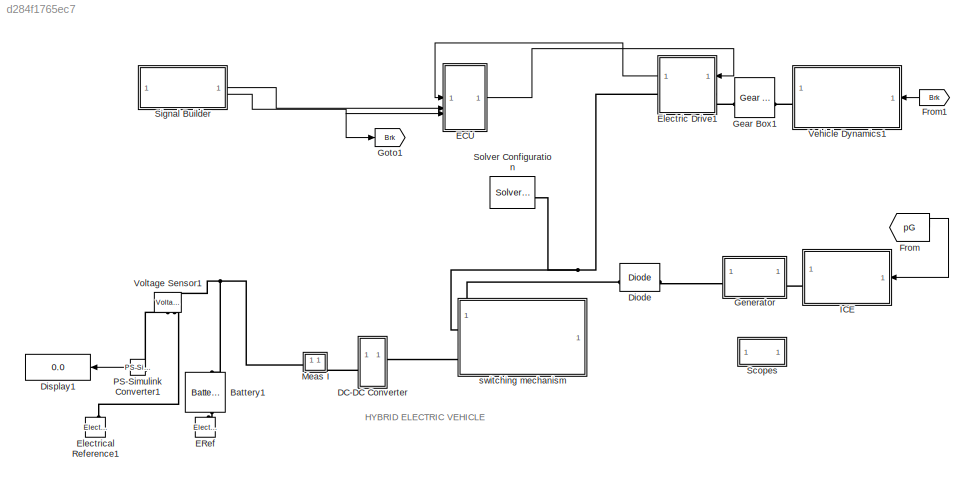
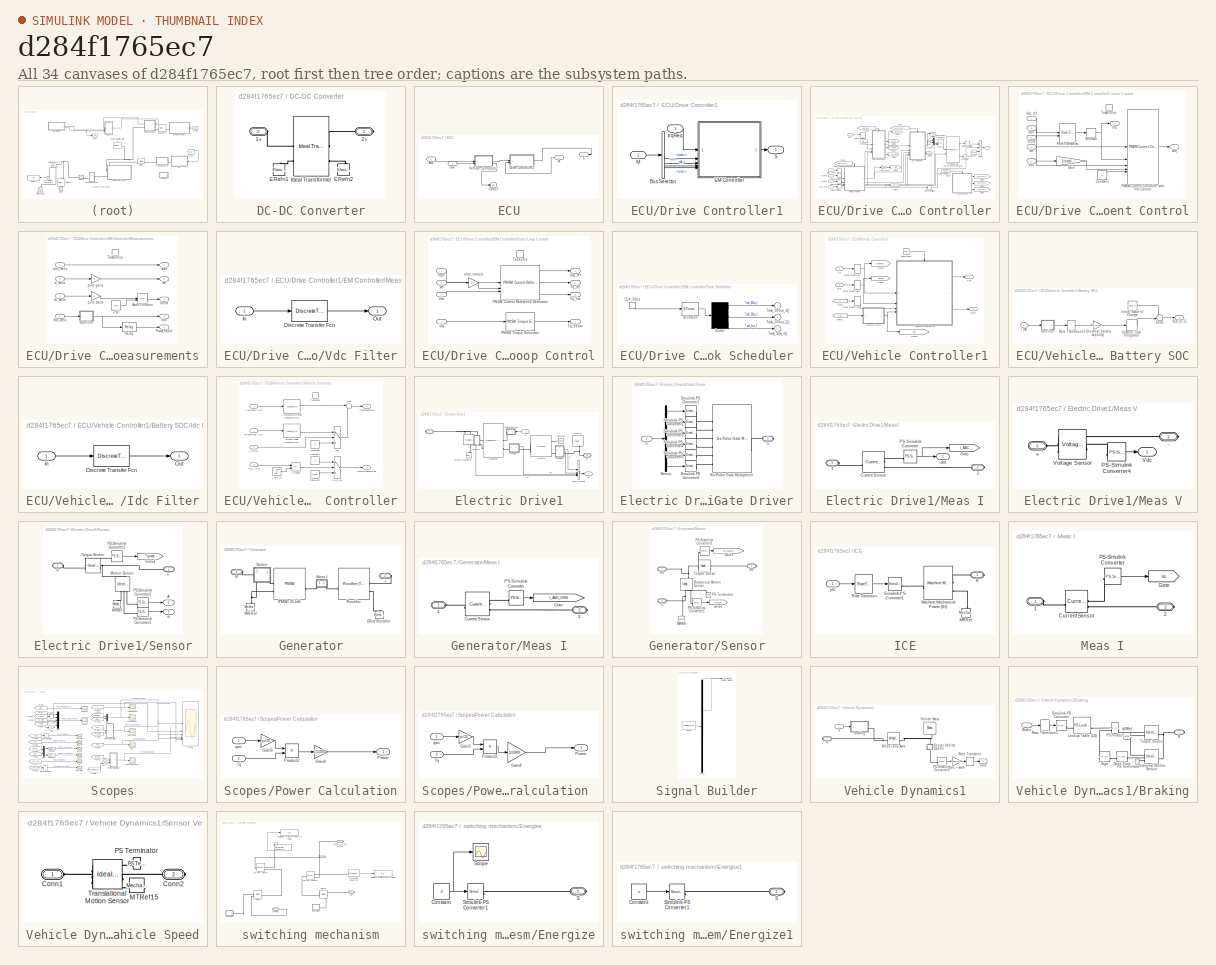
[diagram: thumbnail index - all 34 canvases of the model, root first then tree order]
MODEL slx_d284f1765ec7
KIND model
CONFIG AbsTol = auto
CONFIG EnableMultiTasking = off
CONFIG FixedStep = auto
CONFIG MaxStep = auto
CONFIG MinStep = auto
CONFIG RelTol = 1e-3
CONFIG SampleTimeConstraint = Unconstrained
CONFIG SolverName = VariableStepAuto
CONFIG StartTime = 0.0
CONFIG StopTime = 2.2
BLOCK [Reference] Battery1  REF=batteryecm_lib/Battery
  NameLocation = left
  SourceBlock = batteryecm_lib/Battery
  SourceType = Battery
BLOCK [SubSystem] DC-DC Converter
BLOCK [PMIOPort] DC-DC Converter/1+
  Port = 2
  Side = Left
BLOCK [PMIOPort] DC-DC Converter/2+
  Side = Right
BLOCK [Reference] DC-DC Converter/ERef n1  REF=fl_lib/Electrical/Electrical Elements/Electrical Reference
  SourceBlock = fl_lib/Electrical/Electrical Elements/Electrical Reference
  SourceType = Electrical Reference
BLOCK [Reference] DC-DC Converter/ERef n2  REF=fl_lib/Electrical/Electrical Elements/Electrical Reference
  SourceBlock = fl_lib/Electrical/Electrical Elements/Electrical Reference
  SourceType = Electrical Reference
BLOCK [Reference] DC-DC Converter/Ideal Transformer  REF=fl_lib/Electrical/Electrical Elements/Ideal Transformer
  SourceBlock = fl_lib/Electrical/Electrical Elements/Ideal Transformer
  SourceType = Ideal Transformer
BLOCK [Reference] Diode  REF=fl_lib/Electrical/Electrical Elements/Diode
  NameLocation = top
  SourceBlock = fl_lib/Electrical/Electrical Elements/Diode
  SourceType = Diode
BLOCK [Display] Display1
  Decimation = 1
  NameLocation = right
BLOCK [SubSystem] ECU
BLOCK [Inport] ECU/Acc
  Port = 2
BLOCK [Inport] ECU/Brk
  Port = 3
BLOCK [SubSystem] ECU/Drive Controller1
  NameLocation = top
BLOCK [BusSelector] ECU/Drive Controller1/Bus Selector
  OutputSignals = iabc,w,A,vdc
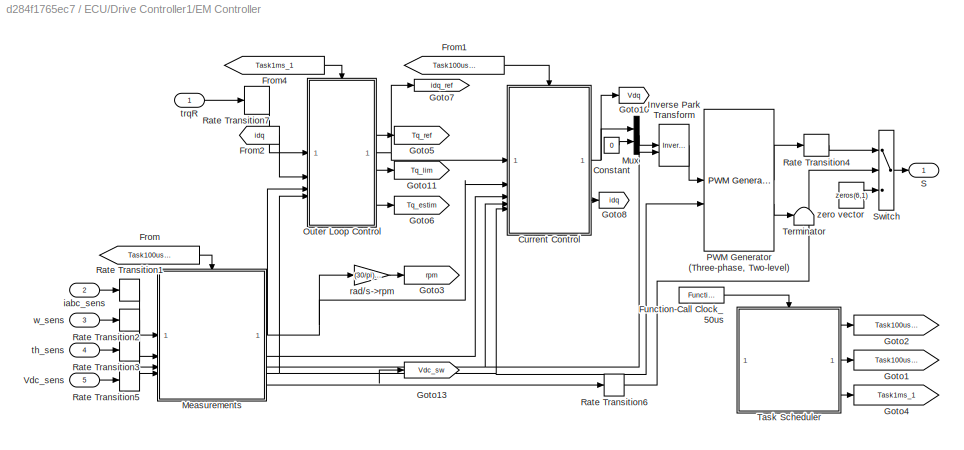
BLOCK [SubSystem] ECU/Drive Controller1/EM Controller
BLOCK [Constant] ECU/Drive Controller1/EM Controller/Constant
  SampleTime = -1
  Value = 0
BLOCK [SubSystem] ECU/Drive Controller1/EM Controller/Current Control
BLOCK [Constant] ECU/Drive Controller1/EM Controller/Current Control/Constant
  SampleTime = -1
  Value = 0
BLOCK [Gain] ECU/Drive Controller1/EM Controller/Current Control/Gain
  Gain = 1/sqrt(3)
BLOCK [Reference] ECU/Drive Controller1/EM Controller/Current Control/PMSM Current Controller with Pre-Control  REF=eePmsmCurrentController/PMSM Current Controller
with Pre-Control
  SourceBlock = eePmsmCurrentController/PMSM Current Controller\nwith Pre-Control
  SourceType = PMSM Current Controller with Pre-Control
BLOCK [Reference] ECU/Drive Controller1/EM Controller/Current Control/Park Transform  REF=eeTransforms/Park Transform
  SourceBlock = eeTransforms/Park Transform
  SourceType = Park Transform
BLOCK [Selector] ECU/Drive Controller1/EM Controller/Current Control/Selector
  IndexOptions = Index vector (dialog)
  Indices = [1 2]
  InputPortWidth = 3
  OutputSizes = 1
BLOCK [TriggerPort] ECU/Drive Controller1/EM Controller/Current Control/Task100us
  PortDimensions = 1
  StatesWhenEnabling = held
  TriggerType = function-call
  VariantControl = Variant
BLOCK [Inport] ECU/Drive Controller1/EM Controller/Current Control/Vdc
  Port = 5
BLOCK [Inport] ECU/Drive Controller1/EM Controller/Current Control/iabc
  Port = 3
BLOCK [Outport] ECU/Drive Controller1/EM Controller/Current Control/idq
  Port = 2
  VectorParamsAs1DForOutWhenUnconnected = off
BLOCK [Inport] ECU/Drive Controller1/EM Controller/Current Control/idq_ref
BLOCK [Inport] ECU/Drive Controller1/EM Controller/Current Control/theta
  Port = 4
BLOCK [Outport] ECU/Drive Controller1/EM Controller/Current Control/vdq
  VectorParamsAs1DForOutWhenUnconnected = off
BLOCK [Inport] ECU/Drive Controller1/EM Controller/Current Control/we
  Port = 2
BLOCK [From] ECU/Drive Controller1/EM Controller/From
  GotoTag = Task100us_1
BLOCK [From] ECU/Drive Controller1/EM Controller/From1
  GotoTag = Task100us_2
BLOCK [From] ECU/Drive Controller1/EM Controller/From2
  GotoTag = idq
  TagVisibility = global
BLOCK [From] ECU/Drive Controller1/EM Controller/From4
  GotoTag = Task1ms_1
BLOCK [Reference] ECU/Drive Controller1/EM Controller/Function-Call Clock_50us  REF=simulink/Ports &
Subsystems/Function-Call
Generator
  SourceBlock = simulink/Ports &\nSubsystems/Function-Call\nGenerator
  SourceType = Function-Call Generator
BLOCK [Goto] ECU/Drive Controller1/EM Controller/Goto1
  GotoTag = Task100us_2
BLOCK [Goto] ECU/Drive Controller1/EM Controller/Goto10
  GotoTag = Vdq
  TagVisibility = global
BLOCK [Goto] ECU/Drive Controller1/EM Controller/Goto11
  GotoTag = Tq_lim
  TagVisibility = global
BLOCK [Goto] ECU/Drive Controller1/EM Controller/Goto13
  GotoTag = Vdc_sw
  TagVisibility = global
BLOCK [Goto] ECU/Drive Controller1/EM Controller/Goto2
  GotoTag = Task100us_1
BLOCK [Goto] ECU/Drive Controller1/EM Controller/Goto3
  GotoTag = rpm
  TagVisibility = global
BLOCK [Goto] ECU/Drive Controller1/EM Controller/Goto4
  GotoTag = Task1ms_1
BLOCK [Goto] ECU/Drive Controller1/EM Controller/Goto5
  GotoTag = Tq_ref
  TagVisibility = global
BLOCK [Goto] ECU/Drive Controller1/EM Controller/Goto6
  GotoTag = Tq_estim
  TagVisibility = global
BLOCK [Goto] ECU/Drive Controller1/EM Controller/Goto7
  GotoTag = idq_ref
  TagVisibility = global
BLOCK [Goto] ECU/Drive Controller1/EM Controller/Goto8
  GotoTag = idq
  TagVisibility = global
BLOCK [Reference] ECU/Drive Controller1/EM Controller/Inverse Park Transform  REF=eeTransforms/Inverse
Park Transform
  SourceBlock = eeTransforms/Inverse\nPark Transform
  SourceType = Inverse Park Transform
BLOCK [SubSystem] ECU/Drive Controller1/EM Controller/Measurements
BLOCK [Constant] ECU/Drive Controller1/EM Controller/Measurements/2*pi
  SampleTime = -1
  Value = 2*pi
BLOCK [Math] ECU/Drive Controller1/EM Controller/Measurements/Math Function
  Operator = mod
  SignedPower = on
BLOCK [Outport] ECU/Drive Controller1/EM Controller/Measurements/PwmEnable
  Port = 5
  VectorParamsAs1DForOutWhenUnconnected = off
BLOCK [Relay] ECU/Drive Controller1/EM Controller/Measurements/Relay
  OffSwitchValue = 0.5*VDC_VECT(1)
  OnSwitchValue = VDC_VECT(1)
BLOCK [TriggerPort] ECU/Drive Controller1/EM Controller/Measurements/Task100us
  PortDimensions = 1
  StatesWhenEnabling = held
  TriggerType = function-call
  VariantControl = Variant
BLOCK [Outport] ECU/Drive Controller1/EM Controller/Measurements/Vdc
  Port = 4
  VectorParamsAs1DForOutWhenUnconnected = off
BLOCK [SubSystem] ECU/Drive Controller1/EM Controller/Measurements/Vdc Filter
BLOCK [DiscreteTransferFcn] ECU/Drive Controller1/EM Controller/Measurements/Vdc Filter/Discrete Transfer Fcn
  Denominator = den
  InputPortMap = u0
  Numerator = num
BLOCK [Inport] ECU/Drive Controller1/EM Controller/Measurements/Vdc Filter/In
BLOCK [Outport] ECU/Drive Controller1/EM Controller/Measurements/Vdc Filter/Out
  VectorParamsAs1DForOutWhenUnconnected = off
BLOCK [Inport] ECU/Drive Controller1/EM Controller/Measurements/Vdc_sens
  Port = 4
BLOCK [Outport] ECU/Drive Controller1/EM Controller/Measurements/iabc
  Port = 2
  VectorParamsAs1DForOutWhenUnconnected = off
BLOCK [Inport] ECU/Drive Controller1/EM Controller/Measurements/iabc_sens
BLOCK [Gain] ECU/Drive Controller1/EM Controller/Measurements/pole pairs
  Gain = p
BLOCK [Gain] ECU/Drive Controller1/EM Controller/Measurements/pole pairs 
  Gain = p
BLOCK [Inport] ECU/Drive Controller1/EM Controller/Measurements/th_sens
  Port = 3
BLOCK [Outport] ECU/Drive Controller1/EM Controller/Measurements/theta
  Port = 3
  VectorParamsAs1DForOutWhenUnconnected = off
BLOCK [Inport] ECU/Drive Controller1/EM Controller/Measurements/w_sens
  Port = 2
BLOCK [Outport] ECU/Drive Controller1/EM Controller/Measurements/we
  VectorParamsAs1DForOutWhenUnconnected = off
BLOCK [Mux] ECU/Drive Controller1/EM Controller/Mux
  DisplayOption = bar
  Inputs = 2
BLOCK [SubSystem] ECU/Drive Controller1/EM Controller/Outer Loop Control
BLOCK [Reference] ECU/Drive Controller1/EM Controller/Outer Loop Control/PMSM Current Reference Generator  REF=eePmsmCurrentReferenceGen/PMSM Current Reference
Generator
  SourceBlock = eePmsmCurrentReferenceGen/PMSM Current Reference\nGenerator
  SourceType = PMSM Current Reference Generator
BLOCK [Reference] ECU/Drive Controller1/EM Controller/Outer Loop Control/PMSM Torque Estimator  REF=eePmsmTorqueEstimator/PMSM Torque
Estimator
  SourceBlock = eePmsmTorqueEstimator/PMSM Torque\nEstimator
  SourceType = PMSM Torque Estimator
BLOCK [TriggerPort] ECU/Drive Controller1/EM Controller/Outer Loop Control/Task1ms
  PortDimensions = 1
  StatesWhenEnabling = held
  TriggerType = function-call
  VariantControl = Variant
BLOCK [Outport] ECU/Drive Controller1/EM Controller/Outer Loop Control/Tq_estim
  Port = 4
  VectorParamsAs1DForOutWhenUnconnected = off
BLOCK [Outport] ECU/Drive Controller1/EM Controller/Outer Loop Control/Tq_lim
  Port = 3
  VectorParamsAs1DForOutWhenUnconnected = off
BLOCK [Outport] ECU/Drive Controller1/EM Controller/Outer Loop Control/Tq_ref
  Port = 2
  VectorParamsAs1DForOutWhenUnconnected = off
BLOCK [Inport] ECU/Drive Controller1/EM Controller/Outer Loop Control/Vdc
  Port = 4
BLOCK [Gain] ECU/Drive Controller1/EM Controller/Outer Loop Control/elec->mech
  Gain = 1/p
BLOCK [Inport] ECU/Drive Controller1/EM Controller/Outer Loop Control/idq
  Port = 2
BLOCK [Outport] ECU/Drive Controller1/EM Controller/Outer Loop Control/idq_ref
  VectorParamsAs1DForOutWhenUnconnected = off
BLOCK [Inport] ECU/Drive Controller1/EM Controller/Outer Loop Control/trqR
BLOCK [Inport] ECU/Drive Controller1/EM Controller/Outer Loop Control/we
  Port = 3
BLOCK [Reference] ECU/Drive Controller1/EM Controller/PWM Generator (Three-phase, Two-level)  REF=eePwmGeneratorTwoLevel/PWM Generator
(Three-phase, Two-level)
  SourceBlock = eePwmGeneratorTwoLevel/PWM Generator\n(Three-phase, Two-level)
  SourceType = PWM Generator (three-phase, two-level)
BLOCK [RateTransition] ECU/Drive Controller1/EM Controller/Rate Transition1
BLOCK [RateTransition] ECU/Drive Controller1/EM Controller/Rate Transition2
BLOCK [RateTransition] ECU/Drive Controller1/EM Controller/Rate Transition3
BLOCK [RateTransition] ECU/Drive Controller1/EM Controller/Rate Transition4
BLOCK [RateTransition] ECU/Drive Controller1/EM Controller/Rate Transition5
BLOCK [RateTransition] ECU/Drive Controller1/EM Controller/Rate Transition6
BLOCK [RateTransition] ECU/Drive Controller1/EM Controller/Rate Transition7
BLOCK [Outport] ECU/Drive Controller1/EM Controller/S
  VectorParamsAs1DForOutWhenUnconnected = off
BLOCK [Switch] ECU/Drive Controller1/EM Controller/Switch
  Criteria = u2 > Threshold
  InputSameDT = off
  SaturateOnIntegerOverflow = off
BLOCK [SubSystem] ECU/Drive Controller1/EM Controller/Task Scheduler
  ErrorFcn = Stateflow.Translate.translate
  PermitHierarchicalResolution = ExplicitOnly
  SFBlockType = Chart
  TreatAsAtomicUnit = on
BLOCK [Demux] ECU/Drive Controller1/EM Controller/Task Scheduler/ Demux 
  Outputs = 3
BLOCK [S-Function] ECU/Drive Controller1/EM Controller/Task Scheduler/ SFunction 
  EnableBusSupport = on
  FunctionName = sf_sfun
  PortCounts = [1 1]
  SFcnIsStateOwnerBlock = off
  SFunctionDeploymentMode = off
  Tag = Stateflow S-Function 2
BLOCK [TriggerPort] ECU/Drive Controller1/EM Controller/Task Scheduler/CLK_50us
  ShowOutputPort = on
  TriggerType = function-call
  VariantControl = Variant
BLOCK [Outport] ECU/Drive Controller1/EM Controller/Task Scheduler/Task_100us_1()
  VectorParamsAs1DForOutWhenUnconnected = off
BLOCK [Outport] ECU/Drive Controller1/EM Controller/Task Scheduler/Task_100us_2()
  Port = 2
  VectorParamsAs1DForOutWhenUnconnected = off
BLOCK [Outport] ECU/Drive Controller1/EM Controller/Task Scheduler/Task_1ms_1()
  Port = 3
  VectorParamsAs1DForOutWhenUnconnected = off
BLOCK [Terminator] ECU/Drive Controller1/EM Controller/Terminator
BLOCK [Inport] ECU/Drive Controller1/EM Controller/Vdc_sens
  Port = 5
BLOCK [Inport] ECU/Drive Controller1/EM Controller/iabc_sens
  Port = 2
BLOCK [Gain] ECU/Drive Controller1/EM Controller/rad//s->rpm
  Gain = (30/pi)/p
BLOCK [Inport] ECU/Drive Controller1/EM Controller/th_sens
  Port = 4
BLOCK [Inport] ECU/Drive Controller1/EM Controller/trqR
BLOCK [Inport] ECU/Drive Controller1/EM Controller/w_sens
  Port = 3
BLOCK [Constant] ECU/Drive Controller1/EM Controller/zero vector
  Value = zeros(6,1)
BLOCK [Inport] ECU/Drive Controller1/M
  Port = 2
BLOCK [Outport] ECU/Drive Controller1/S
  VectorParamsAs1DForOutWhenUnconnected = off
BLOCK [Inport] ECU/Drive Controller1/trqReq
  NameLocation = top
BLOCK [Goto] ECU/Goto2
  GotoTag = pG
  TagVisibility = global
BLOCK [Inport] ECU/M
BLOCK [Outport] ECU/S
BLOCK [SubSystem] ECU/Vehicle Controller1
  NameLocation = top
BLOCK [Inport] ECU/Vehicle Controller1/Acc
BLOCK [SubSystem] ECU/Vehicle Controller1/Battery SOC
BLOCK [Gain] ECU/Vehicle Controller1/Battery SOC/1//(nominal battery capacity)
  Gain = 1/(AH*3600)
BLOCK [DiscreteIntegrator] ECU/Vehicle Controller1/Battery SOC/Discrete-Time Integrator
  ICPrevOutput = DiscIntNeverNeededParam
  ICPrevScaledInput = DiscIntNeverNeededParam
  InitialConditionSetting = Auto
  SampleTime = -1
BLOCK [Inport] ECU/Vehicle Controller1/Battery SOC/I [A]
BLOCK [SubSystem] ECU/Vehicle Controller1/Battery SOC/Idc Filter
BLOCK [DiscreteTransferFcn] ECU/Vehicle Controller1/Battery SOC/Idc Filter/Discrete Transfer Fcn
  Denominator = den
  InputPortMap = u0
  Numerator = num
BLOCK [Inport] ECU/Vehicle Controller1/Battery SOC/Idc Filter/In
BLOCK [Outport] ECU/Vehicle Controller1/Battery SOC/Idc Filter/Out
  VectorParamsAs1DForOutWhenUnconnected = off
BLOCK [Constant] ECU/Vehicle Controller1/Battery SOC/Initial State of Charge
  SampleTime = -1
  Value = SOC0
BLOCK [RateTransition] ECU/Vehicle Controller1/Battery SOC/Rate Transition3
BLOCK [Outport] ECU/Vehicle Controller1/Battery SOC/SOC [0,1]
  VectorParamsAs1DForOutWhenUnconnected = off
BLOCK [Sum] ECU/Vehicle Controller1/Battery SOC/Sum2
  Inputs = +-
BLOCK [Inport] ECU/Vehicle Controller1/Brk
  Port = 2
BLOCK [From] ECU/Vehicle Controller1/From
  GotoTag = v
  TagVisibility = global
BLOCK [From] ECU/Vehicle Controller1/From1
  GotoTag = Idc
  TagVisibility = global
BLOCK [Goto] ECU/Vehicle Controller1/Goto1
  GotoTag = Brake
  TagVisibility = global
BLOCK [Goto] ECU/Vehicle Controller1/Goto2
  GotoTag = Acceleration
  TagVisibility = global
BLOCK [Goto] ECU/Vehicle Controller1/Goto5
  GotoTag = SOC
  TagVisibility = global
BLOCK [RateTransition] ECU/Vehicle Controller1/Rate Transition
BLOCK [RateTransition] ECU/Vehicle Controller1/Rate Transition1
BLOCK [RateTransition] ECU/Vehicle Controller1/Rate Transition2
BLOCK [Reference] ECU/Vehicle Controller1/Task_10ms  REF=simulink/Ports &
Subsystems/Function-Call
Generator
  SourceBlock = simulink/Ports &\nSubsystems/Function-Call\nGenerator
  SourceType = Function-Call Generator
BLOCK [SubSystem] ECU/Vehicle Controller1/Vehicle Controller
BLOCK [Step] ECU/Vehicle Controller1/Vehicle Controller/1 @ 0.1s
  Time = 0.1
BLOCK [Inport] ECU/Vehicle Controller1/Vehicle Controller/AccPedal [0,1]
BLOCK [Lookup_n-D] ECU/Vehicle Controller1/Vehicle Controller/Acceleration Pedal Characteristic
  BreakpointsForDimension1 = 0:0.1:1
  InputPortMap = u0
  InternalRulePriority = Speed
  NumberOfTableDimensions = 1
  RndMeth = Simplest
  Table = [0 0.04 0.07 0.1 0.16 0.2 0.3 0.4 0.6 0.8 1]*TmaxEM
BLOCK [Lookup_n-D] ECU/Vehicle Controller1/Vehicle Controller/Brake Pedal Characteristic
  BreakpointsForDimension1 = [0 0.03 0.04 0.3 0.4 0.5 0.6 0.7 0.8 0.9 1]
  InputPortMap = u0
  InternalRulePriority = Speed
  NumberOfTableDimensions = 1
  RndMeth = Simplest
  Table = [0 0 0.04 0.05 0.06 0.2 0.25 0.4 0.6 0.8 1]*(-TmaxEM)
BLOCK [Inport] ECU/Vehicle Controller1/Vehicle Controller/BrakePedal [0,1]
  Port = 2
BLOCK [Constant] ECU/Vehicle Controller1/Vehicle Controller/Constant
  SampleTime = -1
  Value = 0
BLOCK [Constant] ECU/Vehicle Controller1/Vehicle Controller/Constant1
  SampleTime = -1
  Value = 0
BLOCK [Constant] ECU/Vehicle Controller1/Vehicle Controller/Constant2
  SampleTime = -1
  Value = 30000
BLOCK [Outport] ECU/Vehicle Controller1/Vehicle Controller/PowerRequestGen
  Port = 2
  VectorParamsAs1DForOutWhenUnconnected = off
BLOCK [Product] ECU/Vehicle Controller1/Vehicle Controller/Product
BLOCK [Inport] ECU/Vehicle Controller1/Vehicle Controller/SOC [0,1]
  Port = 4
BLOCK [Switch] ECU/Vehicle Controller1/Vehicle Controller/SOC>0.8
  Criteria = u2 > Threshold
  InputSameDT = off
  SaturateOnIntegerOverflow = off
  Threshold = 0.8
BLOCK [Sum] ECU/Vehicle Controller1/Vehicle Controller/Sum
  Inputs = |++
BLOCK [TriggerPort] ECU/Vehicle Controller1/Vehicle Controller/Task10ms
  PortDimensions = 1
  StatesWhenEnabling = held
  TriggerType = function-call
  VariantControl = Variant
BLOCK [Outport] ECU/Vehicle Controller1/Vehicle Controller/TqRequestMot
  VectorParamsAs1DForOutWhenUnconnected = off
BLOCK [Inport] ECU/Vehicle Controller1/Vehicle Controller/v [km//h]
  Port = 3
BLOCK [Switch] ECU/Vehicle Controller1/Vehicle Controller/v>0
  Criteria = u2 > Threshold
  InputSameDT = off
  SaturateOnIntegerOverflow = off
  Threshold = 0.1
BLOCK [Outport] ECU/Vehicle Controller1/pGen
  Port = 2
  VectorParamsAs1DForOutWhenUnconnected = off
BLOCK [Outport] ECU/Vehicle Controller1/trqR
  VectorParamsAs1DForOutWhenUnconnected = off
BLOCK [Reference] ERef  REF=fl_lib/Electrical/Electrical Elements/Electrical Reference
  SourceBlock = fl_lib/Electrical/Electrical Elements/Electrical Reference
  SourceType = Electrical Reference
BLOCK [SubSystem] Electric Drive1
  Tag = PublishSubsystem
BLOCK [PMIOPort] Electric Drive1/+
  Side = Right
BLOCK [BusCreator] Electric Drive1/Bus Creator
  DisplayOption = bar
  InheritFromInputs = on
  Inputs = 4
BLOCK [Reference] Electric Drive1/C  REF=fl_lib/Electrical/Electrical Elements/Capacitor
  NameLocation = left
  SourceBlock = fl_lib/Electrical/Electrical Elements/Capacitor
  SourceType = Capacitor
BLOCK [Reference] Electric Drive1/Converter  REF=ee_lib/Semiconductors &
Converters/Converters/Converter
(Three-Phase)
  SourceBlock = ee_lib/Semiconductors &\nConverters/Converters/Converter\n(Three-Phase)
  SourceType = Converter\n(Three-Phase)
BLOCK [Reference] Electric Drive1/ERef Converter  REF=fl_lib/Electrical/Electrical Elements/Electrical Reference
  SourceBlock = fl_lib/Electrical/Electrical Elements/Electrical Reference
  SourceType = Electrical Reference
BLOCK [SubSystem] Electric Drive1/Gate Driver
  NameLocation = top
BLOCK [Demux] Electric Drive1/Gate Driver/Demux
  Outputs = 6
BLOCK [PMIOPort] Electric Drive1/Gate Driver/G
  Side = Right
BLOCK [Inport] Electric Drive1/Gate Driver/S
BLOCK [Reference] Electric Drive1/Gate Driver/Simulink-PS Converter1  REF=nesl_utility/Simulink-PS
Converter
  SourceBlock = nesl_utility/Simulink-PS\nConverter
  SourceType = Simulink-PS\nConverter
BLOCK [Reference] Electric Drive1/Gate Driver/Simulink-PS Converter2  REF=nesl_utility/Simulink-PS
Converter
  SourceBlock = nesl_utility/Simulink-PS\nConverter
  SourceType = Simulink-PS\nConverter
BLOCK [Reference] Electric Drive1/Gate Driver/Simulink-PS Converter3  REF=nesl_utility/Simulink-PS
Converter
  SourceBlock = nesl_utility/Simulink-PS\nConverter
  SourceType = Simulink-PS\nConverter
BLOCK [Reference] Electric Drive1/Gate Driver/Simulink-PS Converter4  REF=nesl_utility/Simulink-PS
Converter
  SourceBlock = nesl_utility/Simulink-PS\nConverter
  SourceType = Simulink-PS\nConverter
BLOCK [Reference] Electric Drive1/Gate Driver/Simulink-PS Converter5  REF=nesl_utility/Simulink-PS
Converter
  SourceBlock = nesl_utility/Simulink-PS\nConverter
  SourceType = Simulink-PS\nConverter
BLOCK [Reference] Electric Drive1/Gate Driver/Simulink-PS Converter6  REF=nesl_utility/Simulink-PS
Converter
  SourceBlock = nesl_utility/Simulink-PS\nConverter
  SourceType = Simulink-PS\nConverter
BLOCK [Reference] Electric Drive1/Gate Driver/Six-Pulse Gate Multiplexer  REF=ee_lib/Semiconductors &
Converters/Converters/Six-Pulse Gate
Multiplexer
  SourceBlock = ee_lib/Semiconductors &\nConverters/Converters/Six-Pulse Gate\nMultiplexer
  SourceType = Six-Pulse Gate\nMultiplexer
BLOCK [Reference] Electric Drive1/IPMSM  REF=ee_lib/Electromechanical/Permanent Magnet/PMSM
  AttributesFormatString = 35 kW
  SourceBlock = ee_lib/Electromechanical/Permanent Magnet/PMSM
  SourceType = PMSM
BLOCK [Reference] Electric Drive1/Inertia  REF=fl_lib/Mechanical/Rotational Elements/Inertia
  SourceBlock = fl_lib/Mechanical/Rotational Elements/Inertia
  SourceType = Inertia
BLOCK [Outport] Electric Drive1/M
  VectorParamsAs1DForOutWhenUnconnected = off
BLOCK [Reference] Electric Drive1/MRRef  REF=fl_lib/Mechanical/Rotational Elements/Mechanical
Rotational Reference
  NameLocation = top
  SourceBlock = fl_lib/Mechanical/Rotational Elements/Mechanical\nRotational Reference
  SourceType = Mechanical\nRotational Reference
BLOCK [SubSystem] Electric Drive1/Meas I
  PortSchema = {"entries":[{"content":{"sides":[{"content":{"connectorIds":["LConn1"]},"type":"ConnectorPlacement.EquallySpacedRectSide","uuid":"3a4028b2-8937-42a6-80f4-68b1695ce77d"},{"content":{"connectorIds":["RConn1","Out1"],"side":"RIGHT"},"type":"ConnectorPlacement.EquallySpacedRectSide","uuid":"b0265b90-0b10-444b-91c2-8367167e2f75"},{"content":{"connectorIds":[],"side":"TOP"},"type":"ConnectorPlacement.Eq...<+252ch>
BLOCK [PMIOPort] Electric Drive1/Meas I/1
  Side = Left
BLOCK [PMIOPort] Electric Drive1/Meas I/2
  Port = 2
  Side = Right
BLOCK [Reference] Electric Drive1/Meas I/Current Sensor  REF=ee_lib/Sensors &
Transducers/Current Sensor
(Three-Phase)
  SourceBlock = ee_lib/Sensors &\nTransducers/Current Sensor\n(Three-Phase)
  SourceType = Current Sensor\n(Three-Phase)
BLOCK [Goto] Electric Drive1/Meas I/Goto
  GotoTag = I_ABC
  TagVisibility = global
BLOCK [Reference] Electric Drive1/Meas I/PS-Simulink Converter  REF=nesl_utility/PS-Simulink
Converter
  SourceBlock = nesl_utility/PS-Simulink\nConverter
  SourceType = PS-Simulink\nConverter
BLOCK [Outport] Electric Drive1/Meas I/iabc
  VectorParamsAs1DForOutWhenUnconnected = off
BLOCK [SubSystem] Electric Drive1/Meas V
BLOCK [PMIOPort] Electric Drive1/Meas V/+
  Port = 2
  Side = Left
BLOCK [PMIOPort] Electric Drive1/Meas V/-
  Side = Right
BLOCK [Reference] Electric Drive1/Meas V/PS-Simulink Converter4  REF=nesl_utility/PS-Simulink
Converter
  SourceBlock = nesl_utility/PS-Simulink\nConverter
  SourceType = PS-Simulink\nConverter
BLOCK [Outport] Electric Drive1/Meas V/Vdc
  VectorParamsAs1DForOutWhenUnconnected = off
BLOCK [Reference] Electric Drive1/Meas V/Voltage Sensor  REF=fl_lib/Electrical/Electrical Sensors/Voltage Sensor
  SourceBlock = fl_lib/Electrical/Electrical Sensors/Voltage Sensor
  SourceType = Voltage Sensor
BLOCK [PMIOPort] Electric Drive1/R
  Port = 2
  Side = Left
BLOCK [Inport] Electric Drive1/S
  NameLocation = top
BLOCK [SubSystem] Electric Drive1/Sensor
BLOCK [Outport] Electric Drive1/Sensor/A
  NameLocation = top
  Port = 2
  VectorParamsAs1DForOutWhenUnconnected = off
BLOCK [PMIOPort] Electric Drive1/Sensor/C
  Port = 2
  Side = Right
BLOCK [Goto] Electric Drive1/Sensor/Goto4
  GotoTag = Tq_meas
  TagVisibility = global
BLOCK [Reference] Electric Drive1/Sensor/MRRef  REF=fl_lib/Mechanical/Rotational Elements/Mechanical
Rotational Reference
  NameLocation = left
  SourceBlock = fl_lib/Mechanical/Rotational Elements/Mechanical\nRotational Reference
  SourceType = Mechanical\nRotational Reference
BLOCK [Reference] Electric Drive1/Sensor/Motion Sensor  REF=fl_lib/Mechanical/Mechanical Sensors/Ideal Rotational
Motion Sensor
  SourceBlock = fl_lib/Mechanical/Mechanical Sensors/Ideal Rotational\nMotion Sensor
  SourceType = Ideal Rotational\nMotion Sensor
BLOCK [Reference] Electric Drive1/Sensor/PS-Simulink Converter1  REF=nesl_utility/PS-Simulink
Converter
  SourceBlock = nesl_utility/PS-Simulink\nConverter
  SourceType = PS-Simulink\nConverter
BLOCK [Reference] Electric Drive1/Sensor/PS-Simulink Converter2  REF=nesl_utility/PS-Simulink
Converter
  SourceBlock = nesl_utility/PS-Simulink\nConverter
  SourceType = PS-Simulink\nConverter
BLOCK [Reference] Electric Drive1/Sensor/PS-Simulink Converter3  REF=nesl_utility/PS-Simulink
Converter
  SourceBlock = nesl_utility/PS-Simulink\nConverter
  SourceType = PS-Simulink\nConverter
BLOCK [PMIOPort] Electric Drive1/Sensor/R
  Side = Left
BLOCK [Reference] Electric Drive1/Sensor/Torque Sensor  REF=fl_lib/Mechanical/Mechanical Sensors/Ideal Torque Sensor
  SourceBlock = fl_lib/Mechanical/Mechanical Sensors/Ideal Torque Sensor
  SourceType = Ideal Torque Sensor
BLOCK [Outport] Electric Drive1/Sensor/w
  VectorParamsAs1DForOutWhenUnconnected = off
BLOCK [Reference] Electrical Reference1  REF=fl_lib/Electrical/Electrical Elements/Electrical Reference
  NameLocation = right
  SourceBlock = fl_lib/Electrical/Electrical Elements/Electrical Reference
  SourceType = Electrical Reference
BLOCK [From] From
  GotoTag = pG
  TagVisibility = global
BLOCK [From] From1
  GotoTag = Brk
  TagVisibility = global
BLOCK [Reference] Gear Box1  REF=fl_lib/Mechanical/Mechanisms/Gear Box
  SourceBlock = fl_lib/Mechanical/Mechanisms/Gear Box
  SourceType = Gear Box
BLOCK [SubSystem] Generator
BLOCK [PMIOPort] Generator/+
  Port = 2
  Side = Right
BLOCK [Reference] Generator/ERef Rectifier  REF=fl_lib/Electrical/Electrical Elements/Electrical Reference
  SourceBlock = fl_lib/Electrical/Electrical Elements/Electrical Reference
  SourceType = Electrical Reference
BLOCK [Reference] Generator/IPMSG 35 kW  REF=ee_lib/Electromechanical/Permanent Magnet/PMSM
  SourceBlock = ee_lib/Electromechanical/Permanent Magnet/PMSM
  SourceType = PMSM
BLOCK [Reference] Generator/MRRef  REF=fl_lib/Mechanical/Rotational Elements/Mechanical
Rotational Reference
  SourceBlock = fl_lib/Mechanical/Rotational Elements/Mechanical\nRotational Reference
  SourceType = Mechanical\nRotational Reference
BLOCK [SubSystem] Generator/Meas I
BLOCK [PMIOPort] Generator/Meas I/1
  Side = Left
BLOCK [PMIOPort] Generator/Meas I/2
  Port = 2
  Side = Right
BLOCK [Reference] Generator/Meas I/Current Sensor  REF=ee_lib/Sensors &
Transducers/Current Sensor
(Three-Phase)
  SourceBlock = ee_lib/Sensors &\nTransducers/Current Sensor\n(Three-Phase)
  SourceType = Current Sensor\n(Three-Phase)
BLOCK [Goto] Generator/Meas I/Goto
  GotoTag = I_ABC_GEN
  TagVisibility = global
BLOCK [Reference] Generator/Meas I/PS-Simulink Converter  REF=nesl_utility/PS-Simulink
Converter
  SourceBlock = nesl_utility/PS-Simulink\nConverter
  SourceType = PS-Simulink\nConverter
BLOCK [PMIOPort] Generator/R
  Side = Left
BLOCK [Reference] Generator/Rectifier  REF=ee_lib/Semiconductors &
Converters/Converters/Rectifier
(Three-Phase)
  SourceBlock = ee_lib/Semiconductors &\nConverters/Converters/Rectifier\n(Three-Phase)
  SourceType = Rectifier\n(Three-Phase)
BLOCK [SubSystem] Generator/Sensor
  NameLocation = top
BLOCK [PMIOPort] Generator/Sensor/C
  Port = 3
  Side = Left
BLOCK [Goto] Generator/Sensor/Goto2
  GotoTag = W_GEN
  TagVisibility = global
BLOCK [Goto] Generator/Sensor/Goto4
  GotoTag = Tq_meas_gen
  TagVisibility = global
BLOCK [Reference] Generator/Sensor/MRRef  REF=fl_lib/Mechanical/Rotational Elements/Mechanical
Rotational Reference
  SourceBlock = fl_lib/Mechanical/Rotational Elements/Mechanical\nRotational Reference
  SourceType = Mechanical\nRotational Reference
BLOCK [Reference] Generator/Sensor/PS Terminator  REF=fl_lib/Physical Signals/Sinks/PS Terminator
  SourceBlock = fl_lib/Physical Signals/Sinks/PS Terminator
  SourceType = PS Terminator
BLOCK [Reference] Generator/Sensor/PS-Simulink Converter1  REF=nesl_utility/PS-Simulink
Converter
  SourceBlock = nesl_utility/PS-Simulink\nConverter
  SourceType = PS-Simulink\nConverter
BLOCK [Reference] Generator/Sensor/PS-Simulink Converter3  REF=nesl_utility/PS-Simulink
Converter
  SourceBlock = nesl_utility/PS-Simulink\nConverter
  SourceType = PS-Simulink\nConverter
BLOCK [PMIOPort] Generator/Sensor/R1
  Port = 2
  Side = Left
BLOCK [PMIOPort] Generator/Sensor/R2
  Side = Right
BLOCK [Reference] Generator/Sensor/Rotational Motion Sensor  REF=fl_lib/Mechanical/Mechanical Sensors/Ideal Rotational
Motion Sensor
  SourceBlock = fl_lib/Mechanical/Mechanical Sensors/Ideal Rotational\nMotion Sensor
  SourceType = Ideal Rotational\nMotion Sensor
BLOCK [Reference] Generator/Sensor/Torque Sensor  REF=fl_lib/Mechanical/Mechanical Sensors/Ideal Torque Sensor
  SourceBlock = fl_lib/Mechanical/Mechanical Sensors/Ideal Torque Sensor
  SourceType = Ideal Torque Sensor
BLOCK [Goto] Goto1
  GotoTag = Brk
  TagVisibility = global
BLOCK [SubSystem] ICE
BLOCK [Reference] ICE/MRRef  REF=fl_lib/Mechanical/Rotational Elements/Mechanical
Rotational Reference
  SourceBlock = fl_lib/Mechanical/Rotational Elements/Mechanical\nRotational Reference
  SourceType = Mechanical\nRotational Reference
BLOCK [Reference] ICE/Machine Mechanical Power (SI)  REF=ee_lib/Electromechanical/Mechanical/Machine Mechanical
Power
  SourceBlock = ee_lib/Electromechanical/Mechanical/Machine Mechanical\nPower
  SourceType = Machine Mechanical\nPower
BLOCK [PMIOPort] ICE/R
  Side = Right
BLOCK [RateTransition] ICE/Rate Transition
BLOCK [Reference] ICE/Simulink-PS Converter1  REF=nesl_utility/Simulink-PS
Converter
  SourceBlock = nesl_utility/Simulink-PS\nConverter
  SourceType = Simulink-PS\nConverter
BLOCK [Inport] ICE/pG
BLOCK [SubSystem] Meas I
BLOCK [PMIOPort] Meas I/1
  Side = Left
BLOCK [PMIOPort] Meas I/2
  Port = 2
  Side = Right
BLOCK [Reference] Meas I/Current Sensor  REF=fl_lib/Electrical/Electrical Sensors/Current Sensor
  SourceBlock = fl_lib/Electrical/Electrical Sensors/Current Sensor
  SourceType = Current Sensor
BLOCK [Goto] Meas I/Goto
  GotoTag = Idc
  TagVisibility = global
BLOCK [Reference] Meas I/PS-Simulink Converter  REF=nesl_utility/PS-Simulink
Converter
  SourceBlock = nesl_utility/PS-Simulink\nConverter
  SourceType = PS-Simulink\nConverter
BLOCK [Reference] PS-Simulink Converter1  REF=nesl_utility/PS-Simulink
Converter
  SourceBlock = nesl_utility/PS-Simulink\nConverter
  SourceType = PS-Simulink\nConverter
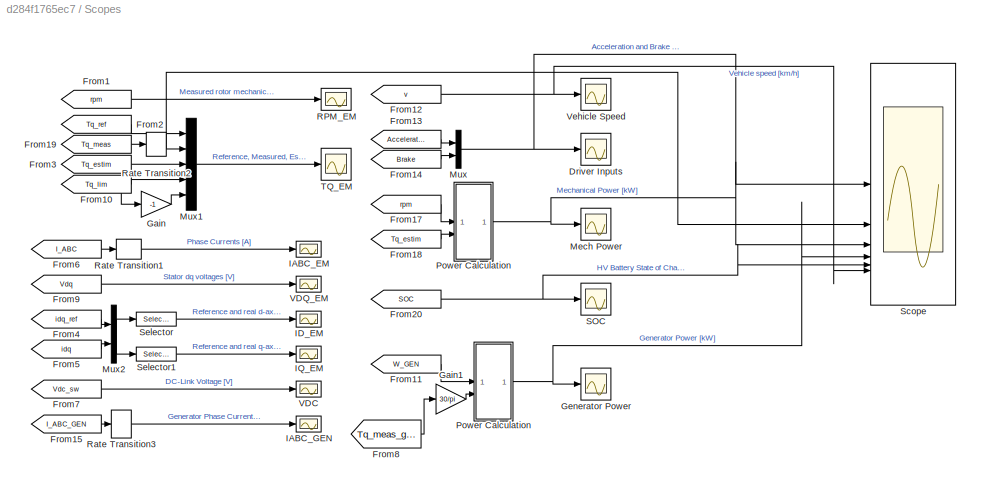
BLOCK [SubSystem] Scopes
  NameLocation = top
BLOCK [Scope] Scopes/Driver Inputs
  Floating = off
  NumInputPorts = 1
  ScopeSpecificationString = Simulink.scopes.TimeScopeBlockCfg('CurrentConfiguration', extmgr.ConfigurationSet(extmgr.Configuration('Core','General UI',true,'FigureColor',[1 1 1]),extmgr.Configuration('Core','Source UI',true),extmgr.Configuration('Sources','WiredSimulink',true,'DataLoggingVariableName','ScopeData1'),extmgr.Configuration('Visuals','Time Domain',true,'SerializedDisplays',{struct('MinYLimReal','-0.125','MaxYLimR...<+1604ch>
BLOCK [From] Scopes/From1
  GotoTag = rpm
  TagVisibility = global
BLOCK [From] Scopes/From10
  GotoTag = Tq_lim
  TagVisibility = global
BLOCK [From] Scopes/From11
  GotoTag = W_GEN
  TagVisibility = global
BLOCK [From] Scopes/From12
  GotoTag = v
  TagVisibility = global
BLOCK [From] Scopes/From13
  GotoTag = Acceleration
  TagVisibility = global
BLOCK [From] Scopes/From14
  GotoTag = Brake
  TagVisibility = global
BLOCK [From] Scopes/From15
  GotoTag = I_ABC_GEN
  TagVisibility = global
BLOCK [From] Scopes/From17
  GotoTag = rpm
  TagVisibility = global
BLOCK [From] Scopes/From18
  GotoTag = Tq_estim
  TagVisibility = global
BLOCK [From] Scopes/From19
  GotoTag = Tq_meas
  TagVisibility = global
BLOCK [From] Scopes/From2
  GotoTag = Tq_ref
  TagVisibility = global
BLOCK [From] Scopes/From20
  GotoTag = SOC
  TagVisibility = global
BLOCK [From] Scopes/From3
  GotoTag = Tq_estim
  TagVisibility = global
BLOCK [From] Scopes/From4
  GotoTag = idq_ref
  TagVisibility = global
BLOCK [From] Scopes/From5
  GotoTag = idq
  TagVisibility = global
BLOCK [From] Scopes/From6
  GotoTag = I_ABC
  TagVisibility = global
BLOCK [From] Scopes/From7
  GotoTag = Vdc_sw
  TagVisibility = global
BLOCK [From] Scopes/From8
  GotoTag = Tq_meas_gen
  TagVisibility = global
BLOCK [From] Scopes/From9
  GotoTag = Vdq
  TagVisibility = global
BLOCK [Gain] Scopes/Gain
  Gain = -1
BLOCK [Gain] Scopes/Gain1
  Gain = 30/pi
BLOCK [Scope] Scopes/Generator Power
  Floating = off
  NumInputPorts = 1
  ScopeSpecificationString = Simulink.scopes.TimeScopeBlockCfg('CurrentConfiguration', extmgr.ConfigurationSet(extmgr.Configuration('Core','General UI',true),extmgr.Configuration('Core','Source UI',true),extmgr.Configuration('Sources','WiredSimulink',true,'DataLoggingVariableName','ScopeData1'),extmgr.Configuration('Visuals','Time Domain',true,'SerializedDisplays',{struct('MinYLimReal','-36.76765','MaxYLimReal','4.08529','YLa...<+1456ch>
BLOCK [Scope] Scopes/IABC_EM
  Floating = off
  NumInputPorts = 1
  ScopeSpecificationString = Simulink.scopes.TimeScopeBlockCfg('CurrentConfiguration', extmgr.ConfigurationSet(extmgr.Configuration('Core','General UI',true),extmgr.Configuration('Core','Source UI',true),extmgr.Configuration('Sources','WiredSimulink',true,'DataLoggingVariableName','ScopeData5'),extmgr.Configuration('Visuals','Time Domain',true,'SerializedDisplays',{struct('MinYLimReal','-481.2985','MaxYLimReal','481.09371','Y...<+1574ch>
BLOCK [Scope] Scopes/IABC_GEN
  Floating = off
  NumInputPorts = 1
  ScopeSpecificationString = Simulink.scopes.TimeScopeBlockCfg('CurrentConfiguration', extmgr.ConfigurationSet(extmgr.Configuration('Core','General UI',true),extmgr.Configuration('Core','Source UI',true),extmgr.Configuration('Sources','WiredSimulink',true,'DataLoggingVariableName','ScopeData1','DataLoggingSaveFormat','Array','DataLoggingDecimation','1','DataLoggingDecimateData',true),extmgr.Configuration('Visuals','Time Domai...<+1660ch>
BLOCK [Scope] Scopes/ID_EM
  Floating = off
  NumInputPorts = 1
  ScopeSpecificationString = Simulink.scopes.TimeScopeBlockCfg('CurrentConfiguration', extmgr.ConfigurationSet(extmgr.Configuration('Core','General UI',true),extmgr.Configuration('Core','Source UI',true),extmgr.Configuration('Sources','WiredSimulink',true,'DataLoggingVariableName','ScopeData1','DataLoggingSaveFormat','Array','DataLoggingDecimation','1','DataLoggingDecimateData',true),extmgr.Configuration('Visuals','Time Domai...<+1616ch>
BLOCK [Scope] Scopes/IQ_EM
  Floating = off
  NumInputPorts = 1
  ScopeSpecificationString = Simulink.scopes.TimeScopeBlockCfg('CurrentConfiguration', extmgr.ConfigurationSet(extmgr.Configuration('Core','General UI',true),extmgr.Configuration('Core','Source UI',true),extmgr.Configuration('Sources','WiredSimulink',true,'DataLoggingVariableName','ScopeData2','DataLoggingSaveFormat','Array','DataLoggingDecimation','1','DataLoggingDecimateData',true),extmgr.Configuration('Visuals','Time Domai...<+1618ch>
BLOCK [Scope] Scopes/Mech Power
  Floating = off
  NumInputPorts = 1
  ScopeSpecificationString = Simulink.scopes.TimeScopeBlockCfg('CurrentConfiguration', extmgr.ConfigurationSet(extmgr.Configuration('Core','General UI',true),extmgr.Configuration('Core','Source UI',true),extmgr.Configuration('Sources','WiredSimulink',true,'DataLoggingVariableName','ScopeData4'),extmgr.Configuration('Visuals','Time Domain',true,'SerializedDisplays',{struct('MinYLimReal','-46.18312','MaxYLimReal','46.64806','YL...<+1460ch>
BLOCK [Mux] Scopes/Mux
  DisplayOption = bar
  Inputs = 2
BLOCK [Mux] Scopes/Mux1
  DisplayOption = bar
  Inputs = 5
BLOCK [Mux] Scopes/Mux2
  DisplayOption = bar
  Inputs = 2
BLOCK [SubSystem] Scopes/Power Calculation
BLOCK [SubSystem] Scopes/Power Calculation 
BLOCK [Gain] Scopes/Power Calculation /Gain3
  Gain = pi/30
BLOCK [Gain] Scopes/Power Calculation /Gain4
  Gain = 1/1000
BLOCK [Outport] Scopes/Power Calculation /Power
  VectorParamsAs1DForOutWhenUnconnected = off
BLOCK [Product] Scopes/Power Calculation /Product2
BLOCK [Inport] Scopes/Power Calculation /Tq
  Port = 2
BLOCK [Inport] Scopes/Power Calculation /rpm
BLOCK [Gain] Scopes/Power Calculation/Gain3
  Gain = pi/30
BLOCK [Gain] Scopes/Power Calculation/Gain4
  Gain = 1/1000
BLOCK [Outport] Scopes/Power Calculation/Power
  VectorParamsAs1DForOutWhenUnconnected = off
BLOCK [Product] Scopes/Power Calculation/Product2
BLOCK [Inport] Scopes/Power Calculation/Tq
  Port = 2
BLOCK [Inport] Scopes/Power Calculation/rpm
BLOCK [Scope] Scopes/RPM_EM
  Floating = off
  NumInputPorts = 1
  ScopeSpecificationString = Simulink.scopes.TimeScopeBlockCfg('CurrentConfiguration', extmgr.ConfigurationSet(extmgr.Configuration('Core','General UI',true),extmgr.Configuration('Core','Source UI',true),extmgr.Configuration('Sources','WiredSimulink',true,'DataLoggingVariableName','ScopeData1'),extmgr.Configuration('Visuals','Time Domain',true,'SerializedDisplays',{struct('MinYLimReal','-255.32196','MaxYLimReal','2296.47822',...<+1515ch>
BLOCK [RateTransition] Scopes/Rate Transition1
  OutPortSampleTime = 1e-4
BLOCK [RateTransition] Scopes/Rate Transition2
BLOCK [RateTransition] Scopes/Rate Transition3
  OutPortSampleTime = 1e-4
BLOCK [Scope] Scopes/SOC
  Floating = off
  NumInputPorts = 1
  ScopeSpecificationString = Simulink.scopes.TimeScopeBlockCfg('CurrentConfiguration', extmgr.ConfigurationSet(extmgr.Configuration('Core','General UI',true,'FigureColor',[1 1 1]),extmgr.Configuration('Core','Source UI',true),extmgr.Configuration('Sources','WiredSimulink',true,'DataLoggingVariableName','ScopeData1'),extmgr.Configuration('Visuals','Time Domain',true,'SerializedDisplays',{struct('MinYLimReal','0.69996','MaxYLim...<+1625ch>
BLOCK [Scope] Scopes/Scope
  Floating = off
  NumInputPorts = 6
  ScopeSpecificationString = Simulink.scopes.TimeScopeBlockCfg('CurrentConfiguration', extmgr.ConfigurationSet(extmgr.Configuration('Core','General UI',true,'FigureColor',[1 1 1]),extmgr.Configuration('Core','Source UI',true),extmgr.Configuration('Sources','WiredSimulink',true,'DataLoggingVariableName','ScopeData1'),extmgr.Configuration('Visuals','Time Domain',true,'SerializedDisplays',{struct('MinYLimReal','-0.10161','MaxYLi...<+7981ch>
BLOCK [Selector] Scopes/Selector
  IndexOptions = Index vector (dialog)
  Indices = [1 3]
  InputPortWidth = 4
  OutputSizes = 1
BLOCK [Selector] Scopes/Selector1
  IndexOptions = Index vector (dialog)
  Indices = [2 4]
  InputPortWidth = 4
  OutputSizes = 1
BLOCK [Scope] Scopes/TQ_EM
  Floating = off
  NumInputPorts = 1
  ScopeSpecificationString = Simulink.scopes.TimeScopeBlockCfg('CurrentConfiguration', extmgr.ConfigurationSet(extmgr.Configuration('Core','General UI',true),extmgr.Configuration('Core','Source UI',true),extmgr.Configuration('Sources','WiredSimulink',true,'DataLoggingVariableName','ScopeData2'),extmgr.Configuration('Visuals','Time Domain',true,'SerializedDisplays',{struct('MinYLimReal','-278.70633','MaxYLimReal','280.95518','...<+1773ch>
BLOCK [Scope] Scopes/VDC
  Floating = off
  NumInputPorts = 1
  ScopeSpecificationString = Simulink.scopes.TimeScopeBlockCfg('CurrentConfiguration', extmgr.ConfigurationSet(extmgr.Configuration('Core','General UI',true),extmgr.Configuration('Core','Source UI',true),extmgr.Configuration('Sources','WiredSimulink',true,'DataLoggingVariableName','ScopeData6'),extmgr.Configuration('Visuals','Time Domain',true,'SerializedDisplays',{struct('MinYLimReal','-40.81688','MaxYLimReal','367.36152','Y...<+1461ch>
BLOCK [Scope] Scopes/VDQ_EM
  Floating = off
  NumInputPorts = 1
  ScopeSpecificationString = Simulink.scopes.TimeScopeBlockCfg('CurrentConfiguration', extmgr.ConfigurationSet(extmgr.Configuration('Core','General UI',true),extmgr.Configuration('Core','Source UI',true),extmgr.Configuration('Sources','WiredSimulink',true,'DataLoggingVariableName','ScopeData8'),extmgr.Configuration('Visuals','Time Domain',true,'SerializedDisplays',{struct('MinYLimReal','-208.74755','MaxYLimReal','197.7582','Y...<+1495ch>
BLOCK [Scope] Scopes/Vehicle Speed
  Floating = off
  NumInputPorts = 1
  ScopeSpecificationString = Simulink.scopes.TimeScopeBlockCfg('CurrentConfiguration', extmgr.ConfigurationSet(extmgr.Configuration('Core','General UI',true),extmgr.Configuration('Core','Source UI',true),extmgr.Configuration('Sources','WiredSimulink',true,'DataLoggingVariableName','ScopeData2'),extmgr.Configuration('Visuals','Time Domain',true,'SerializedDisplays',{struct('MinYLimReal','-2.32575','MaxYLimReal','20.93176','YLa...<+1456ch>
BLOCK [SubSystem] Signal Builder
  ClipboardFcn = sigbuilder_block('clipboard');
  CloseFcn = sigbuilder_block('close');
  ContinueFcn = sigbuilder_block('continue');
  CopyFcn = sigbuilder_block('copy');
  DeleteFcn = sigbuilder_block('delete');
  LoadFcn = sigbuilder_block('load');
  MaskHideContents = on
  ModelCloseFcn = sigbuilder_block('modelClose');
  NameChangeFcn = sigbuilder_block('namechange');
  OpenFcn = sigbuilder_block('open',[437.6 199.2 550.4 400 ]);
  PauseFcn = sigbuilder_block('pause');
  PreSaveFcn = sigbuilder_block('preSave');
  StartFcn = sigbuilder_block('start');
  StopFcn = sigbuilder_block('stop');
  Tag = STV Subsys
BLOCK [Demux] Signal Builder/Demux
  DisplayOption = none
  Outputs = 2
  Tag = STV Demux
BLOCK [FromWorkspace] Signal Builder/FromWs
  Tag = STV FromWs
  VariableName = tuvar
BLOCK [Outport] Signal Builder/Signal 1
  Tag = STV Outport
BLOCK [Outport] Signal Builder/Signal 2
  Port = 2
  Tag = STV Outport
BLOCK [Reference] Solver Configuration  REF=nesl_utility/Solver
Configuration
  SourceBlock = nesl_utility/Solver\nConfiguration
  SourceType = Solver\nConfiguration
BLOCK [SubSystem] Vehicle Dynamics1
BLOCK [SubSystem] Vehicle Dynamics1/Braking
BLOCK [Inport] Vehicle Dynamics1/Braking/Brake
BLOCK [Reference] Vehicle Dynamics1/Braking/Dead Zone  REF=fl_lib/Physical Signals/Nonlinear Operators/PS Dead Zone
  SourceBlock = fl_lib/Physical Signals/Nonlinear Operators/PS Dead Zone
  SourceType = PS Dead Zone
BLOCK [Reference] Vehicle Dynamics1/Braking/Lookup Table (1D)  REF=fl_lib/Physical Signals/Lookup Tables/PS Lookup Table (1D)
  NameLocation = top
  SourceBlock = fl_lib/Physical Signals/Lookup Tables/PS Lookup Table (1D)
  SourceType = PS Lookup Table (1D)
BLOCK [Reference] Vehicle Dynamics1/Braking/MRRef  REF=fl_lib/Mechanical/Rotational Elements/Mechanical
Rotational Reference
  SourceBlock = fl_lib/Mechanical/Rotational Elements/Mechanical\nRotational Reference
  SourceType = Mechanical\nRotational Reference
BLOCK [Reference] Vehicle Dynamics1/Braking/PS Product  REF=fl_lib/Physical Signals/Functions/PS Product
  SourceBlock = fl_lib/Physical Signals/Functions/PS Product
  SourceType = PS Product
BLOCK [Reference] Vehicle Dynamics1/Braking/PS Terminator  REF=fl_lib/Physical Signals/Sinks/PS Terminator
  SourceBlock = fl_lib/Physical Signals/Sinks/PS Terminator
  SourceType = PS Terminator
BLOCK [PMIOPort] Vehicle Dynamics1/Braking/R
  Side = Right
BLOCK [RateTransition] Vehicle Dynamics1/Braking/Rate Transition1
BLOCK [Reference] Vehicle Dynamics1/Braking/Rotational Motion Sensor  REF=fl_lib/Mechanical/Mechanical Sensors/Ideal Rotational
Motion Sensor
  SourceBlock = fl_lib/Mechanical/Mechanical Sensors/Ideal Rotational\nMotion Sensor
  SourceType = Ideal Rotational\nMotion Sensor
BLOCK [Reference] Vehicle Dynamics1/Braking/Sign  REF=fl_lib/Physical Signals/Nonlinear Operators/PS Sign
  SourceBlock = fl_lib/Physical Signals/Nonlinear Operators/PS Sign
  SourceType = PS Sign
BLOCK [Reference] Vehicle Dynamics1/Braking/Simulink-PS Converter  REF=nesl_utility/Simulink-PS
Converter
  SourceBlock = nesl_utility/Simulink-PS\nConverter
  SourceType = Simulink-PS\nConverter
BLOCK [Reference] Vehicle Dynamics1/Braking/Torque Source  REF=fl_lib/Mechanical/Mechanical Sources/Ideal Torque Source
  SourceBlock = fl_lib/Mechanical/Mechanical Sources/Ideal Torque Source
  SourceType = Ideal Torque Source
BLOCK [Goto] Vehicle Dynamics1/Goto
  GotoTag = v
  TagVisibility = global
BLOCK [Reference] Vehicle Dynamics1/PS-Simulink Converter3  REF=nesl_utility/PS-Simulink
Converter
  SourceBlock = nesl_utility/PS-Simulink\nConverter
  SourceType = PS-Simulink\nConverter
BLOCK [PMIOPort] Vehicle Dynamics1/R
  Side = Right
BLOCK [RateTransition] Vehicle Dynamics1/Rate Transition
  OutPortSampleTime = 1e-4
BLOCK [SubSystem] Vehicle Dynamics1/Sensor Vehicle Speed
BLOCK [PMIOPort] Vehicle Dynamics1/Sensor Vehicle Speed/Conn1
  Side = Left
BLOCK [PMIOPort] Vehicle Dynamics1/Sensor Vehicle Speed/Conn2
  Port = 2
  Side = Right
BLOCK [Reference] Vehicle Dynamics1/Sensor Vehicle Speed/MTRef15  REF=fl_lib/Mechanical/Translational
Elements/Mechanical
Translational
Reference
  SourceBlock = fl_lib/Mechanical/Translational\nElements/Mechanical\nTranslational\nReference
  SourceType = Mechanical\nTranslational\nReference
BLOCK [Reference] Vehicle Dynamics1/Sensor Vehicle Speed/PS Terminator  REF=fl_lib/Physical Signals/Sinks/PS Terminator
  SourceBlock = fl_lib/Physical Signals/Sinks/PS Terminator
  SourceType = PS Terminator
BLOCK [Reference] Vehicle Dynamics1/Sensor Vehicle Speed/Translational Motion Sensor  REF=fl_lib/Mechanical/Mechanical Sensors/Ideal Translational
Motion Sensor
  SourceBlock = fl_lib/Mechanical/Mechanical Sensors/Ideal Translational\nMotion Sensor
  SourceType = Ideal Translational\nMotion Sensor
BLOCK [Reference] Vehicle Dynamics1/Vehicle Mass  REF=fl_lib/Mechanical/Translational
Elements/Mass
  NameLocation = left
  SourceBlock = fl_lib/Mechanical/Translational\nElements/Mass
  SourceType = Mass
BLOCK [Reference] Vehicle Dynamics1/Wheel and Axle  REF=fl_lib/Mechanical/Mechanisms/Wheel and Axle
  SourceBlock = fl_lib/Mechanical/Mechanisms/Wheel and Axle
  SourceType = Wheel and Axle
BLOCK [Inport] Vehicle Dynamics1/b
BLOCK [Gain] Vehicle Dynamics1/m//s -> km//h
  Gain = 3600/1000
BLOCK [Reference] Voltage Sensor1  REF=fl_lib/Electrical/Electrical Sensors/Voltage Sensor
  LibrarySourceBlock = ee_lib/Sensors &\nTransducers/Voltage Sensor
  NameLocation = right
  SourceBlock = fl_lib/Electrical/Electrical Sensors/Voltage Sensor
  SourceType = Voltage Sensor
BLOCK [SubSystem] switching mechanism
BLOCK [PMIOPort] switching mechanism/BATTERY
  Port = 3
  Side = Right
BLOCK [Display] switching mechanism/CURRENT WHEN BATTERY IS USED
  Decimation = 1
BLOCK [Display] switching mechanism/CURRENT WHEN ICE IS USED
  Decimation = 1
BLOCK [Reference] switching mechanism/Current Sensor  REF=fl_lib/Electrical/Electrical Sensors/Current Sensor
  SourceBlock = fl_lib/Electrical/Electrical Sensors/Current Sensor
  SourceType = Current Sensor
BLOCK [Reference] switching mechanism/Current Sensor1  REF=fl_lib/Electrical/Electrical Sensors/Current Sensor
  SourceBlock = fl_lib/Electrical/Electrical Sensors/Current Sensor
  SourceType = Current Sensor
BLOCK [SubSystem] switching mechanism/Energize
  NameLocation = top
BLOCK [Constant] switching mechanism/Energize/Constant
  Value = d
BLOCK [PMIOPort] switching mechanism/Energize/S
  Side = Right
BLOCK [Scope] switching mechanism/Energize/Scope
  Floating = off
  NumInputPorts = 1
  ScopeSpecificationString = Simulink.scopes.TimeScopeBlockCfg('CurrentConfiguration', extmgr.ConfigurationSet(extmgr.Configuration('Core','General UI',true),extmgr.Configuration('Core','Source UI',true),extmgr.Configuration('Sources','WiredSimulink',true,'DataLoggingVariableName','ScopeData1','DataLoggingSaveFormat','Array','DataLoggingLimitDataPoints',true,'DataLoggingDecimation','1'),extmgr.Configuration('Visuals','Time Do...<+1639ch>
BLOCK [Reference] switching mechanism/Energize/Simulink-PS Converter1  REF=nesl_utility/Simulink-PS
Converter
  SourceBlock = nesl_utility/Simulink-PS\nConverter
  SourceType = Simulink-PS\nConverter
BLOCK [SubSystem] switching mechanism/Energize1
  NameLocation = top
BLOCK [Constant] switching mechanism/Energize1/Constant
  Value = e
BLOCK [PMIOPort] switching mechanism/Energize1/S
  Side = Right
BLOCK [Reference] switching mechanism/Energize1/Simulink-PS Converter1  REF=nesl_utility/Simulink-PS
Converter
  SourceBlock = nesl_utility/Simulink-PS\nConverter
  SourceType = Simulink-PS\nConverter
BLOCK [PMIOPort] switching mechanism/ICE
  Port = 2
  Side = Right
BLOCK [PMIOPort] switching mechanism/OUTPUT TO THE MOTOR
  Side = Right
BLOCK [Reference] switching mechanism/PS-Simulink Converter  REF=nesl_utility/PS-Simulink
Converter
  SourceBlock = nesl_utility/PS-Simulink\nConverter
  SourceType = PS-Simulink\nConverter
BLOCK [Reference] switching mechanism/PS-Simulink Converter1  REF=nesl_utility/PS-Simulink
Converter
  SourceBlock = nesl_utility/PS-Simulink\nConverter
  SourceType = PS-Simulink\nConverter
BLOCK [Reference] switching mechanism/Switch  REF=fl_lib/Electrical/Electrical Elements/Switch
  SourceBlock = fl_lib/Electrical/Electrical Elements/Switch
  SourceType = Switch
BLOCK [Reference] switching mechanism/Switch1  REF=fl_lib/Electrical/Electrical Elements/Switch
  NameLocation = top
  SourceBlock = fl_lib/Electrical/Electrical Elements/Switch
  SourceType = Switch
ANNOTATION (root): HYBRID ELECTRIC VEHICLE
LINE ECU/Acc:1 -> ECU/Vehicle Controller1:1
LINE ECU/Brk:1 -> ECU/Vehicle Controller1:2
LINE ECU/Drive Controller1/Bus Selector:1 -> ECU/Drive Controller1/EM Controller:2
LINE ECU/Drive Controller1/Bus Selector:2 -> ECU/Drive Controller1/EM Controller:3
LINE ECU/Drive Controller1/Bus Selector:3 -> ECU/Drive Controller1/EM Controller:4
LINE ECU/Drive Controller1/Bus Selector:4 -> ECU/Drive Controller1/EM Controller:5
LINE ECU/Drive Controller1/EM Controller/Constant:1 -> ECU/Drive Controller1/EM Controller/Mux:2
LINE ECU/Drive Controller1/EM Controller/Current Control/Constant:1 -> ECU/Drive Controller1/EM Controller/Current Control/PMSM Current Controller with Pre-Control:5
LINE ECU/Drive Controller1/EM Controller/Current Control/Gain:1 -> ECU/Drive Controller1/EM Controller/Current Control/PMSM Current Controller with Pre-Control:4
LINE ECU/Drive Controller1/EM Controller/Current Control/PMSM Current Controller with Pre-Control:1 -> ECU/Drive Controller1/EM Controller/Current Control/vdq:1
LINE ECU/Drive Controller1/EM Controller/Current Control/Park Transform:1 -> ECU/Drive Controller1/EM Controller/Current Control/Selector:1
NET ECU/Drive Controller1/EM Controller/Current Control/Selector:1 -> ECU/Drive Controller1/EM Controller/Current Control/PMSM Current Controller with Pre-Control:2, ECU/Drive Controller1/EM Controller/Current Control/idq:1
LINE ECU/Drive Controller1/EM Controller/Current Control/Vdc:1 -> ECU/Drive Controller1/EM Controller/Current Control/Gain:1
LINE ECU/Drive Controller1/EM Controller/Current Control/iabc:1 -> ECU/Drive Controller1/EM Controller/Current Control/Park Transform:1
LINE ECU/Drive Controller1/EM Controller/Current Control/idq_ref:1 -> ECU/Drive Controller1/EM Controller/Current Control/PMSM Current Controller with Pre-Control:1
LINE ECU/Drive Controller1/EM Controller/Current Control/theta:1 -> ECU/Drive Controller1/EM Controller/Current Control/Park Transform:2
LINE ECU/Drive Controller1/EM Controller/Current Control/we:1 -> ECU/Drive Controller1/EM Controller/Current Control/PMSM Current Controller with Pre-Control:3
NET ECU/Drive Controller1/EM Controller/Current Control:1 -> ECU/Drive Controller1/EM Controller/Goto10:1, ECU/Drive Controller1/EM Controller/Mux:1
LINE ECU/Drive Controller1/EM Controller/Current Control:2 -> ECU/Drive Controller1/EM Controller/Goto8:1
LINE ECU/Drive Controller1/EM Controller/From1:1 -> ECU/Drive Controller1/EM Controller/Current Control:trigger
LINE ECU/Drive Controller1/EM Controller/From2:1 -> ECU/Drive Controller1/EM Controller/Outer Loop Control:2
LINE ECU/Drive Controller1/EM Controller/From4:1 -> ECU/Drive Controller1/EM Controller/Outer Loop Control:trigger
LINE ECU/Drive Controller1/EM Controller/From:1 -> ECU/Drive Controller1/EM Controller/Measurements:trigger
LINE ECU/Drive Controller1/EM Controller/Function-Call Clock_50us:1 -> ECU/Drive Controller1/EM Controller/Task Scheduler:trigger
LINE ECU/Drive Controller1/EM Controller/Inverse Park Transform:1 -> ECU/Drive Controller1/EM Controller/PWM Generator (Three-phase, Two-level):1
LINE ECU/Drive Controller1/EM Controller/Measurements/2*pi:1 -> ECU/Drive Controller1/EM Controller/Measurements/Math Function:2
LINE ECU/Drive Controller1/EM Controller/Measurements/Math Function:1 -> ECU/Drive Controller1/EM Controller/Measurements/theta:1
LINE ECU/Drive Controller1/EM Controller/Measurements/Relay:1 -> ECU/Drive Controller1/EM Controller/Measurements/PwmEnable:1
LINE ECU/Drive Controller1/EM Controller/Measurements/Vdc Filter/Discrete Transfer Fcn:1 -> ECU/Drive Controller1/EM Controller/Measurements/Vdc Filter/Out:1
LINE ECU/Drive Controller1/EM Controller/Measurements/Vdc Filter/In:1 -> ECU/Drive Controller1/EM Controller/Measurements/Vdc Filter/Discrete Transfer Fcn:1
NET ECU/Drive Controller1/EM Controller/Measurements/Vdc Filter:1 -> ECU/Drive Controller1/EM Controller/Measurements/Relay:1, ECU/Drive Controller1/EM Controller/Measurements/Vdc:1
LINE ECU/Drive Controller1/EM Controller/Measurements/Vdc_sens:1 -> ECU/Drive Controller1/EM Controller/Measurements/Vdc Filter:1
LINE ECU/Drive Controller1/EM Controller/Measurements/iabc_sens:1 -> ECU/Drive Controller1/EM Controller/Measurements/iabc:1
LINE ECU/Drive Controller1/EM Controller/Measurements/pole pairs :1 -> ECU/Drive Controller1/EM Controller/Measurements/Math Function:1
LINE ECU/Drive Controller1/EM Controller/Measurements/pole pairs:1 -> ECU/Drive Controller1/EM Controller/Measurements/we:1
LINE ECU/Drive Controller1/EM Controller/Measurements/th_sens:1 -> ECU/Drive Controller1/EM Controller/Measurements/pole pairs :1
LINE ECU/Drive Controller1/EM Controller/Measurements/w_sens:1 -> ECU/Drive Controller1/EM Controller/Measurements/pole pairs:1
NET ECU/Drive Controller1/EM Controller/Measurements:1 -> ECU/Drive Controller1/EM Controller/Current Control:2, ECU/Drive Controller1/EM Controller/Outer Loop Control:3, ECU/Drive Controller1/EM Controller/rad//s->rpm:1
LINE ECU/Drive Controller1/EM Controller/Measurements:2 -> ECU/Drive Controller1/EM Controller/Current Control:3
NET ECU/Drive Controller1/EM Controller/Measurements:3 -> ECU/Drive Controller1/EM Controller/Current Control:4, ECU/Drive Controller1/EM Controller/Inverse Park Transform:2
NET ECU/Drive Controller1/EM Controller/Measurements:4 -> ECU/Drive Controller1/EM Controller/Current Control:5, ECU/Drive Controller1/EM Controller/Goto13:1, ECU/Drive Controller1/EM Controller/Outer Loop Control:4, ECU/Drive Controller1/EM Controller/PWM Generator (Three-phase, Two-level):2
LINE ECU/Drive Controller1/EM Controller/Measurements:5 -> ECU/Drive Controller1/EM Controller/Rate Transition6:1
LINE ECU/Drive Controller1/EM Controller/Mux:1 -> ECU/Drive Controller1/EM Controller/Inverse Park Transform:1
LINE ECU/Drive Controller1/EM Controller/Outer Loop Control/PMSM Current Reference Generator:1 -> ECU/Drive Controller1/EM Controller/Outer Loop Control/idq_ref:1
LINE ECU/Drive Controller1/EM Controller/Outer Loop Control/PMSM Current Reference Generator:2 -> ECU/Drive Controller1/EM Controller/Outer Loop Control/Tq_ref:1
LINE ECU/Drive Controller1/EM Controller/Outer Loop Control/PMSM Current Reference Generator:3 -> ECU/Drive Controller1/EM Controller/Outer Loop Control/Tq_lim:1
LINE ECU/Drive Controller1/EM Controller/Outer Loop Control/PMSM Torque Estimator:1 -> ECU/Drive Controller1/EM Controller/Outer Loop Control/Tq_estim:1
LINE ECU/Drive Controller1/EM Controller/Outer Loop Control/Vdc:1 -> ECU/Drive Controller1/EM Controller/Outer Loop Control/PMSM Current Reference Generator:3
LINE ECU/Drive Controller1/EM Controller/Outer Loop Control/elec->mech:1 -> ECU/Drive Controller1/EM Controller/Outer Loop Control/PMSM Current Reference Generator:2
LINE ECU/Drive Controller1/EM Controller/Outer Loop Control/idq:1 -> ECU/Drive Controller1/EM Controller/Outer Loop Control/PMSM Torque Estimator:1
LINE ECU/Drive Controller1/EM Controller/Outer Loop Control/trqR:1 -> ECU/Drive Controller1/EM Controller/Outer Loop Control/PMSM Current Reference Generator:1
LINE ECU/Drive Controller1/EM Controller/Outer Loop Control/we:1 -> ECU/Drive Controller1/EM Controller/Outer Loop Control/elec->mech:1
NET ECU/Drive Controller1/EM Controller/Outer Loop Control:1 -> ECU/Drive Controller1/EM Controller/Current Control:1, ECU/Drive Controller1/EM Controller/Goto7:1
LINE ECU/Drive Controller1/EM Controller/Outer Loop Control:2 -> ECU/Drive Controller1/EM Controller/Goto5:1
LINE ECU/Drive Controller1/EM Controller/Outer Loop Control:3 -> ECU/Drive Controller1/EM Controller/Goto11:1
LINE ECU/Drive Controller1/EM Controller/Outer Loop Control:4 -> ECU/Drive Controller1/EM Controller/Goto6:1
LINE ECU/Drive Controller1/EM Controller/PWM Generator (Three-phase, Two-level):1 -> ECU/Drive Controller1/EM Controller/Rate Transition4:1
LINE ECU/Drive Controller1/EM Controller/PWM Generator (Three-phase, Two-level):2 -> ECU/Drive Controller1/EM Controller/Terminator:1
LINE ECU/Drive Controller1/EM Controller/Rate Transition1:1 -> ECU/Drive Controller1/EM Controller/Measurements:1
LINE ECU/Drive Controller1/EM Controller/Rate Transition2:1 -> ECU/Drive Controller1/EM Controller/Measurements:2
LINE ECU/Drive Controller1/EM Controller/Rate Transition3:1 -> ECU/Drive Controller1/EM Controller/Measurements:3
LINE ECU/Drive Controller1/EM Controller/Rate Transition4:1 -> ECU/Drive Controller1/EM Controller/Switch:1
LINE ECU/Drive Controller1/EM Controller/Rate Transition5:1 -> ECU/Drive Controller1/EM Controller/Measurements:4
LINE ECU/Drive Controller1/EM Controller/Rate Transition6:1 -> ECU/Drive Controller1/EM Controller/Switch:2
LINE ECU/Drive Controller1/EM Controller/Rate Transition7:1 -> ECU/Drive Controller1/EM Controller/Outer Loop Control:1
LINE ECU/Drive Controller1/EM Controller/Switch:1 -> ECU/Drive Controller1/EM Controller/S:1
LINE ECU/Drive Controller1/EM Controller/Task Scheduler:1 -> ECU/Drive Controller1/EM Controller/Goto2:1
LINE ECU/Drive Controller1/EM Controller/Task Scheduler:2 -> ECU/Drive Controller1/EM Controller/Goto1:1
LINE ECU/Drive Controller1/EM Controller/Task Scheduler:3 -> ECU/Drive Controller1/EM Controller/Goto4:1
LINE ECU/Drive Controller1/EM Controller/Vdc_sens:1 -> ECU/Drive Controller1/EM Controller/Rate Transition5:1
LINE ECU/Drive Controller1/EM Controller/iabc_sens:1 -> ECU/Drive Controller1/EM Controller/Rate Transition1:1
LINE ECU/Drive Controller1/EM Controller/rad//s->rpm:1 -> ECU/Drive Controller1/EM Controller/Goto3:1
LINE ECU/Drive Controller1/EM Controller/th_sens:1 -> ECU/Drive Controller1/EM Controller/Rate Transition3:1
LINE ECU/Drive Controller1/EM Controller/trqR:1 -> ECU/Drive Controller1/EM Controller/Rate Transition7:1
LINE ECU/Drive Controller1/EM Controller/w_sens:1 -> ECU/Drive Controller1/EM Controller/Rate Transition2:1
LINE ECU/Drive Controller1/EM Controller/zero vector:1 -> ECU/Drive Controller1/EM Controller/Switch:3
LINE ECU/Drive Controller1/EM Controller:1 -> ECU/Drive Controller1/S:1
LINE ECU/Drive Controller1/M:1 -> ECU/Drive Controller1/Bus Selector:1
LINE ECU/Drive Controller1/trqReq:1 -> ECU/Drive Controller1/EM Controller:1
LINE ECU/Drive Controller1:1 -> ECU/S:1
LINE ECU/M:1 -> ECU/Drive Controller1:2
LINE ECU/Vehicle Controller1/Acc:1 -> ECU/Vehicle Controller1/Rate Transition:1
LINE ECU/Vehicle Controller1/Battery SOC/1//(nominal battery capacity):1 -> ECU/Vehicle Controller1/Battery SOC/Discrete-Time Integrator:1
LINE ECU/Vehicle Controller1/Battery SOC/Discrete-Time Integrator:1 -> ECU/Vehicle Controller1/Battery SOC/Sum2:2
LINE ECU/Vehicle Controller1/Battery SOC/I [A]:1 -> ECU/Vehicle Controller1/Battery SOC/Idc Filter:1
LINE ECU/Vehicle Controller1/Battery SOC/Idc Filter/Discrete Transfer Fcn:1 -> ECU/Vehicle Controller1/Battery SOC/Idc Filter/Out:1
LINE ECU/Vehicle Controller1/Battery SOC/Idc Filter/In:1 -> ECU/Vehicle Controller1/Battery SOC/Idc Filter/Discrete Transfer Fcn:1
LINE ECU/Vehicle Controller1/Battery SOC/Idc Filter:1 -> ECU/Vehicle Controller1/Battery SOC/Rate Transition3:1
LINE ECU/Vehicle Controller1/Battery SOC/Initial State of Charge:1 -> ECU/Vehicle Controller1/Battery SOC/Sum2:1
LINE ECU/Vehicle Controller1/Battery SOC/Rate Transition3:1 -> ECU/Vehicle Controller1/Battery SOC/1//(nominal battery capacity):1
LINE ECU/Vehicle Controller1/Battery SOC/Sum2:1 -> ECU/Vehicle Controller1/Battery SOC/SOC [0,1]:1
NET ECU/Vehicle Controller1/Battery SOC:1 -> ECU/Vehicle Controller1/Goto5:1, ECU/Vehicle Controller1/Vehicle Controller:4
LINE ECU/Vehicle Controller1/Brk:1 -> ECU/Vehicle Controller1/Rate Transition1:1
LINE ECU/Vehicle Controller1/From1:1 -> ECU/Vehicle Controller1/Battery SOC:1
LINE ECU/Vehicle Controller1/From:1 -> ECU/Vehicle Controller1/Rate Transition2:1
NET ECU/Vehicle Controller1/Rate Transition1:1 -> ECU/Vehicle Controller1/Goto1:1, ECU/Vehicle Controller1/Vehicle Controller:2
LINE ECU/Vehicle Controller1/Rate Transition2:1 -> ECU/Vehicle Controller1/Vehicle Controller:3
NET ECU/Vehicle Controller1/Rate Transition:1 -> ECU/Vehicle Controller1/Goto2:1, ECU/Vehicle Controller1/Vehicle Controller:1
LINE ECU/Vehicle Controller1/Task_10ms:1 -> ECU/Vehicle Controller1/Vehicle Controller:trigger
LINE ECU/Vehicle Controller1/Vehicle Controller/1 @ 0.1s:1 -> ECU/Vehicle Controller1/Vehicle Controller/Product:2
LINE ECU/Vehicle Controller1/Vehicle Controller/AccPedal [0,1]:1 -> ECU/Vehicle Controller1/Vehicle Controller/Acceleration Pedal Characteristic:1
LINE ECU/Vehicle Controller1/Vehicle Controller/Acceleration Pedal Characteristic:1 -> ECU/Vehicle Controller1/Vehicle Controller/Sum:1
LINE ECU/Vehicle Controller1/Vehicle Controller/Brake Pedal Characteristic:1 -> ECU/Vehicle Controller1/Vehicle Controller/v>0:1
LINE ECU/Vehicle Controller1/Vehicle Controller/BrakePedal [0,1]:1 -> ECU/Vehicle Controller1/Vehicle Controller/Brake Pedal Characteristic:1
LINE ECU/Vehicle Controller1/Vehicle Controller/Constant1:1 -> ECU/Vehicle Controller1/Vehicle Controller/SOC>0.8:1
LINE ECU/Vehicle Controller1/Vehicle Controller/Constant2:1 -> ECU/Vehicle Controller1/Vehicle Controller/SOC>0.8:3
LINE ECU/Vehicle Controller1/Vehicle Controller/Constant:1 -> ECU/Vehicle Controller1/Vehicle Controller/v>0:3
LINE ECU/Vehicle Controller1/Vehicle Controller/Product:1 -> ECU/Vehicle Controller1/Vehicle Controller/SOC>0.8:2
LINE ECU/Vehicle Controller1/Vehicle Controller/SOC [0,1]:1 -> ECU/Vehicle Controller1/Vehicle Controller/Product:1
LINE ECU/Vehicle Controller1/Vehicle Controller/SOC>0.8:1 -> ECU/Vehicle Controller1/Vehicle Controller/PowerRequestGen:1
LINE ECU/Vehicle Controller1/Vehicle Controller/Sum:1 -> ECU/Vehicle Controller1/Vehicle Controller/TqRequestMot:1
LINE ECU/Vehicle Controller1/Vehicle Controller/v [km//h]:1 -> ECU/Vehicle Controller1/Vehicle Controller/v>0:2
LINE ECU/Vehicle Controller1/Vehicle Controller/v>0:1 -> ECU/Vehicle Controller1/Vehicle Controller/Sum:2
LINE ECU/Vehicle Controller1/Vehicle Controller:1 -> ECU/Vehicle Controller1/trqR:1
LINE ECU/Vehicle Controller1/Vehicle Controller:2 -> ECU/Vehicle Controller1/pGen:1
LINE ECU/Vehicle Controller1:1 -> ECU/Drive Controller1:1
LINE ECU/Vehicle Controller1:2 -> ECU/Goto2:1
LINE ECU:1 -> Electric Drive1:1
LINE Electric Drive1/Bus Creator:1 -> Electric Drive1/M:1
LINE Electric Drive1/Gate Driver/Demux:1 -> Electric Drive1/Gate Driver/Simulink-PS Converter1:1
LINE Electric Drive1/Gate Driver/Demux:2 -> Electric Drive1/Gate Driver/Simulink-PS Converter2:1
LINE Electric Drive1/Gate Driver/Demux:3 -> Electric Drive1/Gate Driver/Simulink-PS Converter3:1
LINE Electric Drive1/Gate Driver/Demux:4 -> Electric Drive1/Gate Driver/Simulink-PS Converter4:1
LINE Electric Drive1/Gate Driver/Demux:5 -> Electric Drive1/Gate Driver/Simulink-PS Converter5:1
LINE Electric Drive1/Gate Driver/Demux:6 -> Electric Drive1/Gate Driver/Simulink-PS Converter6:1
LINE Electric Drive1/Gate Driver/S:1 -> Electric Drive1/Gate Driver/Demux:1
NET Electric Drive1/Meas I/PS-Simulink Converter:1 -> Electric Drive1/Meas I/Goto:1, Electric Drive1/Meas I/iabc:1
LINE Electric Drive1/Meas I:1 -> Electric Drive1/Bus Creator:3
LINE Electric Drive1/Meas V/PS-Simulink Converter4:1 -> Electric Drive1/Meas V/Vdc:1
LINE Electric Drive1/Meas V:1 -> Electric Drive1/Bus Creator:4
LINE Electric Drive1/S:1 -> Electric Drive1/Gate Driver:1
LINE Electric Drive1/Sensor/PS-Simulink Converter1:1 -> Electric Drive1/Sensor/w:1
LINE Electric Drive1/Sensor/PS-Simulink Converter2:1 -> Electric Drive1/Sensor/A:1
LINE Electric Drive1/Sensor/PS-Simulink Converter3:1 -> Electric Drive1/Sensor/Goto4:1
LINE Electric Drive1/Sensor:1 -> Electric Drive1/Bus Creator:1
LINE Electric Drive1/Sensor:2 -> Electric Drive1/Bus Creator:2
LINE Electric Drive1:1 -> ECU:1
LINE From1:1 -> Vehicle Dynamics1:1
LINE From:1 -> ICE:1
LINE Generator/Meas I/PS-Simulink Converter:1 -> Generator/Meas I/Goto:1
LINE Generator/Sensor/PS-Simulink Converter1:1 -> Generator/Sensor/Goto2:1
LINE Generator/Sensor/PS-Simulink Converter3:1 -> Generator/Sensor/Goto4:1
LINE ICE/Rate Transition:1 -> ICE/Simulink-PS Converter1:1
LINE ICE/pG:1 -> ICE/Rate Transition:1
LINE Meas I/PS-Simulink Converter:1 -> Meas I/Goto:1
LINE PS-Simulink Converter1:1 -> Display1:1
NET Scopes/From10:1 -> Scopes/Gain:1, Scopes/Mux1:4
LINE Scopes/From11:1 -> Scopes/Power Calculation :1
NET Scopes/From12:1 -> Scopes/Scope:6, Scopes/Vehicle Speed:1
LINE Scopes/From13:1 -> Scopes/Mux:1
LINE Scopes/From14:1 -> Scopes/Mux:2
LINE Scopes/From15:1 -> Scopes/Rate Transition3:1
LINE Scopes/From17:1 -> Scopes/Power Calculation:1
LINE Scopes/From18:1 -> Scopes/Power Calculation:2
LINE Scopes/From19:1 -> Scopes/Rate Transition2:1
LINE Scopes/From1:1 -> Scopes/RPM_EM:1
NET Scopes/From20:1 -> Scopes/SOC:1, Scopes/Scope:5
LINE Scopes/From2:1 -> Scopes/Mux1:1
LINE Scopes/From3:1 -> Scopes/Mux1:3
LINE Scopes/From4:1 -> Scopes/Mux2:1
LINE Scopes/From5:1 -> Scopes/Mux2:2
LINE Scopes/From6:1 -> Scopes/Rate Transition1:1
LINE Scopes/From7:1 -> Scopes/VDC:1
LINE Scopes/From8:1 -> Scopes/Gain1:1
LINE Scopes/From9:1 -> Scopes/VDQ_EM:1
LINE Scopes/Gain1:1 -> Scopes/Power Calculation :2
LINE Scopes/Gain:1 -> Scopes/Mux1:5
LINE Scopes/Mux1:1 -> Scopes/TQ_EM:1
NET Scopes/Mux2:1 -> Scopes/Selector1:1, Scopes/Selector:1
NET Scopes/Mux:1 -> Scopes/Driver Inputs:1, Scopes/Scope:1
LINE Scopes/Power Calculation /Gain3:1 -> Scopes/Power Calculation /Product2:1
LINE Scopes/Power Calculation /Gain4:1 -> Scopes/Power Calculation /Power:1
LINE Scopes/Power Calculation /Product2:1 -> Scopes/Power Calculation /Gain4:1
LINE Scopes/Power Calculation /Tq:1 -> Scopes/Power Calculation /Product2:2
LINE Scopes/Power Calculation /rpm:1 -> Scopes/Power Calculation /Gain3:1
NET Scopes/Power Calculation :1 -> Scopes/Generator Power:1, Scopes/Scope:4
LINE Scopes/Power Calculation/Gain3:1 -> Scopes/Power Calculation/Product2:1
LINE Scopes/Power Calculation/Gain4:1 -> Scopes/Power Calculation/Power:1
LINE Scopes/Power Calculation/Product2:1 -> Scopes/Power Calculation/Gain4:1
LINE Scopes/Power Calculation/Tq:1 -> Scopes/Power Calculation/Product2:2
LINE Scopes/Power Calculation/rpm:1 -> Scopes/Power Calculation/Gain3:1
NET Scopes/Power Calculation:1 -> Scopes/Mech Power:1, Scopes/Scope:3
LINE Scopes/Rate Transition1:1 -> Scopes/IABC_EM:1
NET Scopes/Rate Transition2:1 -> Scopes/Mux1:2, Scopes/Scope:2
LINE Scopes/Rate Transition3:1 -> Scopes/IABC_GEN:1
LINE Scopes/Selector1:1 -> Scopes/IQ_EM:1
LINE Scopes/Selector:1 -> Scopes/ID_EM:1
LINE Signal Builder:1 -> ECU:2
NET Signal Builder:2 -> ECU:3, Goto1:1
LINE Vehicle Dynamics1/Braking/Brake:1 -> Vehicle Dynamics1/Braking/Rate Transition1:1
LINE Vehicle Dynamics1/Braking/Rate Transition1:1 -> Vehicle Dynamics1/Braking/Simulink-PS Converter:1
LINE Vehicle Dynamics1/PS-Simulink Converter3:1 -> Vehicle Dynamics1/m//s -> km//h:1
LINE Vehicle Dynamics1/Rate Transition:1 -> Vehicle Dynamics1/Goto:1
LINE Vehicle Dynamics1/b:1 -> Vehicle Dynamics1/Braking:1
LINE Vehicle Dynamics1/m//s -> km//h:1 -> Vehicle Dynamics1/Rate Transition:1
NET switching mechanism/Energize/Constant:1 -> switching mechanism/Energize/Scope:1, switching mechanism/Energize/Simulink-PS Converter1:1
LINE switching mechanism/Energize1/Constant:1 -> switching mechanism/Energize1/Simulink-PS Converter1:1
LINE switching mechanism/PS-Simulink Converter1:1 -> switching mechanism/CURRENT WHEN BATTERY IS USED:1
LINE switching mechanism/PS-Simulink Converter:1 -> switching mechanism/CURRENT WHEN ICE IS USED:1
PNET net1: Battery1:LConn1 -- Meas I:LConn1 -- Voltage Sensor1:LConn1
PLINE Battery1:RConn1 -- ERef:LConn1
PLINE DC-DC Converter/1+:RConn1 -- DC-DC Converter/Ideal Transformer:LConn1
PLINE DC-DC Converter/2+:RConn1 -- DC-DC Converter/Ideal Transformer:RConn1
PLINE DC-DC Converter/ERef n1:LConn1 -- DC-DC Converter/Ideal Transformer:LConn2
PLINE DC-DC Converter/ERef n2:LConn1 -- DC-DC Converter/Ideal Transformer:RConn2
PLINE DC-DC Converter:LConn1 -- Meas I:RConn1
PLINE DC-DC Converter:RConn1 -- switching mechanism:RConn3
PLINE Diode:LConn1 -- Generator:RConn1
PLINE Diode:RConn1 -- switching mechanism:RConn2
PNET net2: Electric Drive1/+:RConn1 -- Electric Drive1/C:LConn1 -- Electric Drive1/Converter:RConn1 -- Electric Drive1/Meas V:LConn1
PNET net3: Electric Drive1/C:RConn1 -- Electric Drive1/Converter:RConn2 -- Electric Drive1/ERef Converter:LConn1 -- Electric Drive1/Meas V:RConn1
PLINE Electric Drive1/Converter:LConn1 -- Electric Drive1/Gate Driver:RConn1
PLINE Electric Drive1/Converter:LConn2 -- Electric Drive1/Meas I:LConn1
PLINE Electric Drive1/Gate Driver/G:RConn1 -- Electric Drive1/Gate Driver/Six-Pulse Gate Multiplexer:RConn1
PLINE Electric Drive1/Gate Driver/Simulink-PS Converter1:RConn1 -- Electric Drive1/Gate Driver/Six-Pulse Gate Multiplexer:LConn1
PLINE Electric Drive1/Gate Driver/Simulink-PS Converter2:RConn1 -- Electric Drive1/Gate Driver/Six-Pulse Gate Multiplexer:LConn2
PLINE Electric Drive1/Gate Driver/Simulink-PS Converter3:RConn1 -- Electric Drive1/Gate Driver/Six-Pulse Gate Multiplexer:LConn3
PLINE Electric Drive1/Gate Driver/Simulink-PS Converter4:RConn1 -- Electric Drive1/Gate Driver/Six-Pulse Gate Multiplexer:LConn4
PLINE Electric Drive1/Gate Driver/Simulink-PS Converter5:RConn1 -- Electric Drive1/Gate Driver/Six-Pulse Gate Multiplexer:LConn5
PLINE Electric Drive1/Gate Driver/Simulink-PS Converter6:RConn1 -- Electric Drive1/Gate Driver/Six-Pulse Gate Multiplexer:LConn6
PLINE Electric Drive1/IPMSM:LConn1 -- Electric Drive1/Meas I:RConn1
PLINE Electric Drive1/IPMSM:RConn1 -- Electric Drive1/Sensor:LConn1
PLINE Electric Drive1/IPMSM:RConn2 -- Electric Drive1/MRRef:LConn1
PNET net4: Electric Drive1/Inertia:LConn1 -- Electric Drive1/R:RConn1 -- Electric Drive1/Sensor:RConn1
PLINE Electric Drive1/Meas I/1:RConn1 -- Electric Drive1/Meas I/Current Sensor:LConn1
PLINE Electric Drive1/Meas I/2:RConn1 -- Electric Drive1/Meas I/Current Sensor:RConn2
PLINE Electric Drive1/Meas I/Current Sensor:RConn1 -- Electric Drive1/Meas I/PS-Simulink Converter:LConn1
PLINE Electric Drive1/Meas V/+:RConn1 -- Electric Drive1/Meas V/Voltage Sensor:LConn1
PLINE Electric Drive1/Meas V/-:RConn1 -- Electric Drive1/Meas V/Voltage Sensor:RConn2
PLINE Electric Drive1/Meas V/PS-Simulink Converter4:LConn1 -- Electric Drive1/Meas V/Voltage Sensor:RConn1
PNET net5: Electric Drive1/Sensor/C:RConn1 -- Electric Drive1/Sensor/Motion Sensor:LConn1 -- Electric Drive1/Sensor/Torque Sensor:RConn1
PLINE Electric Drive1/Sensor/MRRef:LConn1 -- Electric Drive1/Sensor/Motion Sensor:RConn1
PLINE Electric Drive1/Sensor/Motion Sensor:RConn2 -- Electric Drive1/Sensor/PS-Simulink Converter1:LConn1
PLINE Electric Drive1/Sensor/Motion Sensor:RConn3 -- Electric Drive1/Sensor/PS-Simulink Converter2:LConn1
PLINE Electric Drive1/Sensor/PS-Simulink Converter3:LConn1 -- Electric Drive1/Sensor/Torque Sensor:RConn2
PLINE Electric Drive1/Sensor/R:RConn1 -- Electric Drive1/Sensor/Torque Sensor:LConn1
PLINE Electric Drive1:LConn1 -- Gear Box1:LConn1
PNET net6: Electric Drive1:RConn1 -- Solver Configuration:RConn1 -- switching mechanism:RConn1
PLINE Electrical Reference1:LConn1 -- Voltage Sensor1:RConn2
PLINE Gear Box1:RConn1 -- Vehicle Dynamics1:RConn1
PLINE Generator/+:RConn1 -- Generator/Rectifier:RConn1
PLINE Generator/ERef Rectifier:LConn1 -- Generator/Rectifier:RConn2
PLINE Generator/IPMSG 35 kW:LConn1 -- Generator/Meas I:LConn1
PLINE Generator/IPMSG 35 kW:RConn1 -- Generator/Sensor:RConn1
PNET net7: Generator/IPMSG 35 kW:RConn2 -- Generator/MRRef:LConn1 -- Generator/Sensor:LConn2
PLINE Generator/Meas I/1:RConn1 -- Generator/Meas I/Current Sensor:LConn1
PLINE Generator/Meas I/2:RConn1 -- Generator/Meas I/Current Sensor:RConn2
PLINE Generator/Meas I/Current Sensor:RConn1 -- Generator/Meas I/PS-Simulink Converter:LConn1
PLINE Generator/Meas I:RConn1 -- Generator/Rectifier:LConn1
PLINE Generator/R:RConn1 -- Generator/Sensor:LConn1
PNET net8: Generator/Sensor/C:RConn1 -- Generator/Sensor/MRRef:LConn1 -- Generator/Sensor/Rotational Motion Sensor:RConn1
PLINE Generator/Sensor/PS Terminator:LConn1 -- Generator/Sensor/Rotational Motion Sensor:RConn3
PLINE Generator/Sensor/PS-Simulink Converter1:LConn1 -- Generator/Sensor/Rotational Motion Sensor:RConn2
PLINE Generator/Sensor/PS-Simulink Converter3:LConn1 -- Generator/Sensor/Torque Sensor:RConn2
PNET net9: Generator/Sensor/R1:RConn1 -- Generator/Sensor/Rotational Motion Sensor:LConn1 -- Generator/Sensor/Torque Sensor:RConn1
PLINE Generator/Sensor/R2:RConn1 -- Generator/Sensor/Torque Sensor:LConn1
PLINE Generator:LConn1 -- ICE:RConn1
PLINE ICE/MRRef:LConn1 -- ICE/Machine Mechanical Power (SI):RConn2
PLINE ICE/Machine Mechanical Power (SI):LConn1 -- ICE/Simulink-PS Converter1:RConn1
PLINE ICE/Machine Mechanical Power (SI):RConn1 -- ICE/R:RConn1
PLINE Meas I/1:RConn1 -- Meas I/Current Sensor:LConn1
PLINE Meas I/2:RConn1 -- Meas I/Current Sensor:RConn2
PLINE Meas I/Current Sensor:RConn1 -- Meas I/PS-Simulink Converter:LConn1
PLINE PS-Simulink Converter1:LConn1 -- Voltage Sensor1:RConn1
PLINE Vehicle Dynamics1/Braking/Dead Zone:LConn1 -- Vehicle Dynamics1/Braking/Rotational Motion Sensor:RConn2
PLINE Vehicle Dynamics1/Braking/Dead Zone:RConn1 -- Vehicle Dynamics1/Braking/Sign:LConn1
PLINE Vehicle Dynamics1/Braking/Lookup Table (1D):LConn1 -- Vehicle Dynamics1/Braking/Simulink-PS Converter:RConn1
PLINE Vehicle Dynamics1/Braking/Lookup Table (1D):RConn1 -- Vehicle Dynamics1/Braking/PS Product:LConn1
PNET net10: Vehicle Dynamics1/Braking/MRRef:LConn1 -- Vehicle Dynamics1/Braking/Rotational Motion Sensor:RConn1 -- Vehicle Dynamics1/Braking/Torque Source:RConn2
PLINE Vehicle Dynamics1/Braking/PS Product:LConn2 -- Vehicle Dynamics1/Braking/Sign:RConn1
PLINE Vehicle Dynamics1/Braking/PS Product:RConn1 -- Vehicle Dynamics1/Braking/Torque Source:RConn1
PLINE Vehicle Dynamics1/Braking/PS Terminator:LConn1 -- Vehicle Dynamics1/Braking/Rotational Motion Sensor:RConn3
PNET net11: Vehicle Dynamics1/Braking/R:RConn1 -- Vehicle Dynamics1/Braking/Rotational Motion Sensor:LConn1 -- Vehicle Dynamics1/Braking/Torque Source:LConn1
PNET net12: Vehicle Dynamics1/Braking:RConn1 -- Vehicle Dynamics1/R:RConn1 -- Vehicle Dynamics1/Wheel and Axle:LConn1
PLINE Vehicle Dynamics1/PS-Simulink Converter3:LConn1 -- Vehicle Dynamics1/Sensor Vehicle Speed:RConn1
PLINE Vehicle Dynamics1/Sensor Vehicle Speed/Conn1:RConn1 -- Vehicle Dynamics1/Sensor Vehicle Speed/Translational Motion Sensor:LConn1
PLINE Vehicle Dynamics1/Sensor Vehicle Speed/Conn2:RConn1 -- Vehicle Dynamics1/Sensor Vehicle Speed/Translational Motion Sensor:RConn2
PLINE Vehicle Dynamics1/Sensor Vehicle Speed/MTRef15:LConn1 -- Vehicle Dynamics1/Sensor Vehicle Speed/Translational Motion Sensor:RConn1
PLINE Vehicle Dynamics1/Sensor Vehicle Speed/PS Terminator:LConn1 -- Vehicle Dynamics1/Sensor Vehicle Speed/Translational Motion Sensor:RConn3
PNET net13: Vehicle Dynamics1/Sensor Vehicle Speed:LConn1 -- Vehicle Dynamics1/Vehicle Mass:LConn1 -- Vehicle Dynamics1/Wheel and Axle:RConn1
PLINE switching mechanism/BATTERY:RConn1 -- switching mechanism/Switch:RConn2
PLINE switching mechanism/Current Sensor1:LConn1 -- switching mechanism/Switch1:LConn1
PLINE switching mechanism/Current Sensor1:RConn1 -- switching mechanism/PS-Simulink Converter:LConn1
PNET net14: switching mechanism/Current Sensor1:RConn2 -- switching mechanism/Current Sensor:LConn1 -- switching mechanism/OUTPUT TO THE MOTOR:RConn1
PLINE switching mechanism/Current Sensor:RConn1 -- switching mechanism/PS-Simulink Converter1:LConn1
PLINE switching mechanism/Current Sensor:RConn2 -- switching mechanism/Switch:LConn1
PLINE switching mechanism/Energize/S:RConn1 -- switching mechanism/Energize/Simulink-PS Converter1:RConn1
PLINE switching mechanism/Energize1/S:RConn1 -- switching mechanism/Energize1/Simulink-PS Converter1:RConn1
PLINE switching mechanism/Energize1:RConn1 -- switching mechanism/Switch1:RConn1
PLINE switching mechanism/Energize:RConn1 -- switching mechanism/Switch:RConn1
PLINE switching mechanism/ICE:RConn1 -- switching mechanism/Switch1:RConn2
note: NET lines group one-source signal fan-out (src -> all destinations, sorted); 1:1 wires keep LINE; PNET lines group multi-terminal physical nets as a canonical sorted terminal list (undirected conserving connections); 2-terminal nets keep the pairwise PLINE form
CHART ECU/Drive Controller1/EM Controller/Task Scheduler states=0 transitions=10
CHART  states=0 transitions=0
